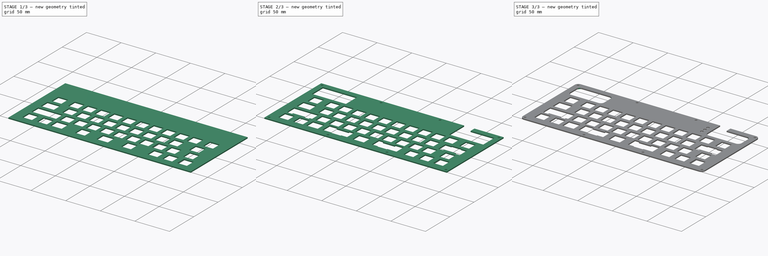
[diagram: build sequence overview — one tinted view per stage of 3, left to right]
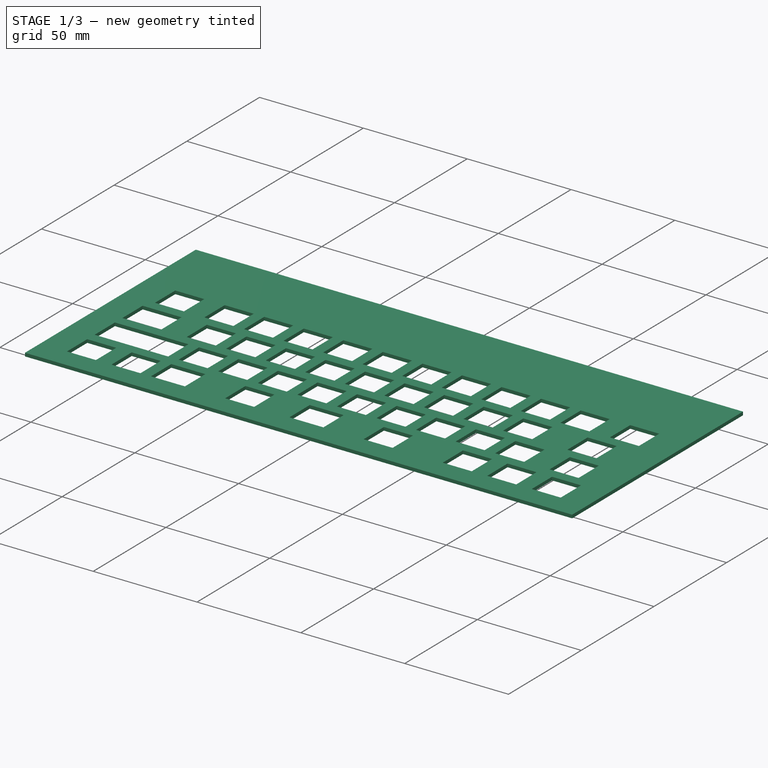
[diagram: stage 1 of 3 — iso view after this stage's code; geometry added in this stage tinted green]
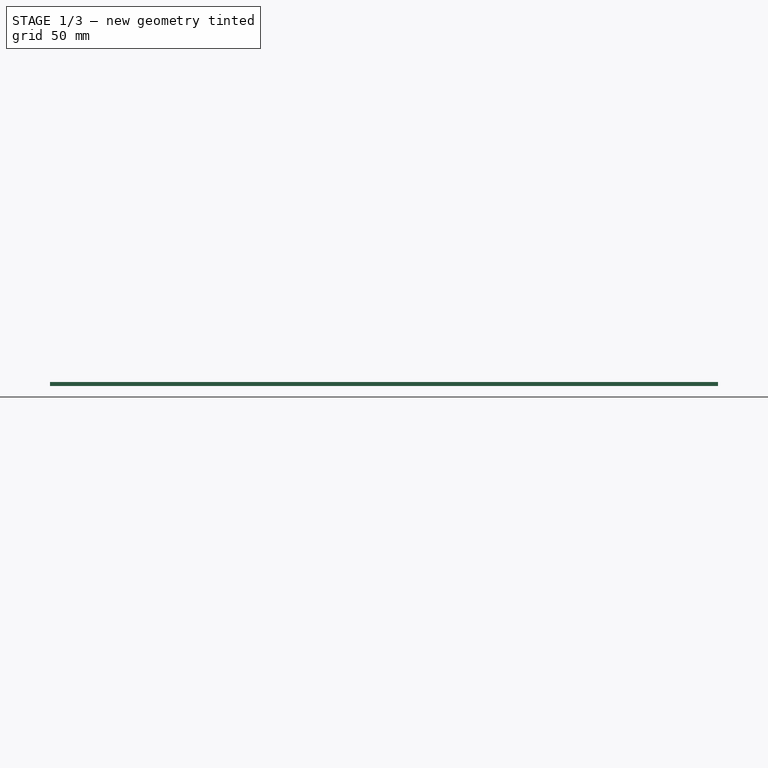
[diagram: stage 1 of 3 — front view after this stage's code; geometry added in this stage tinted green]
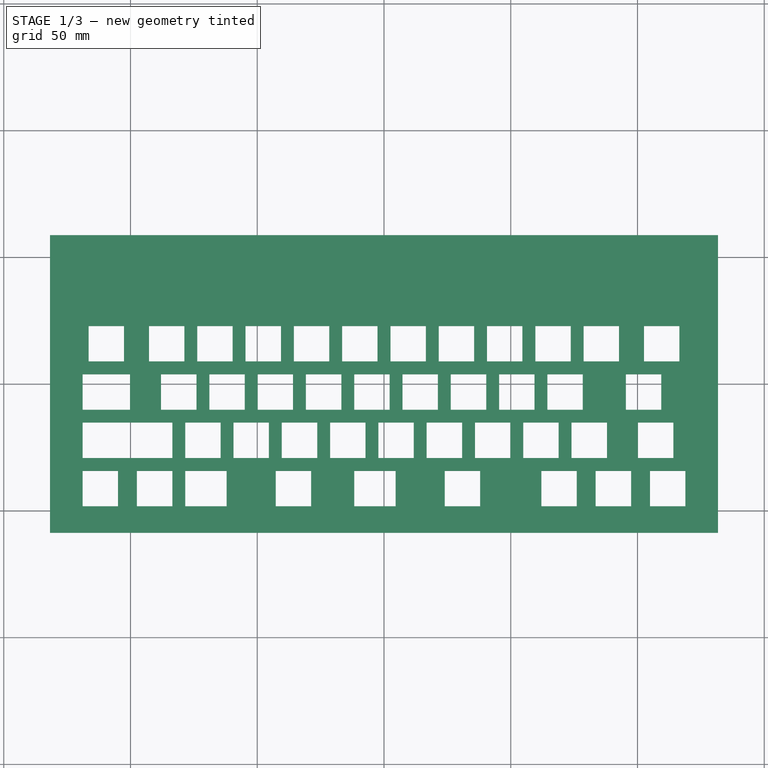
[diagram: stage 1 of 3 — top view after this stage's code; geometry added in this stage tinted green]
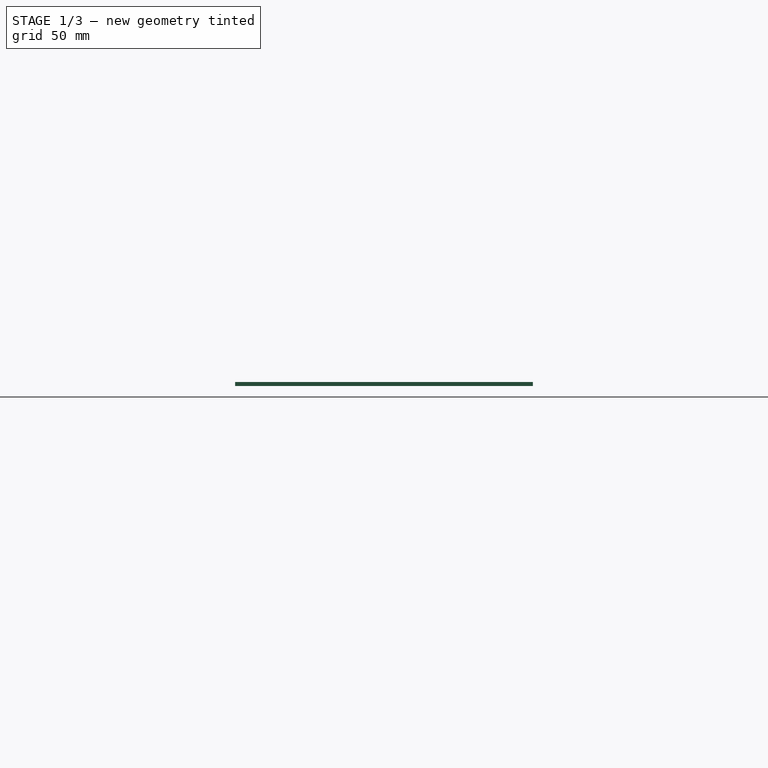
[diagram: stage 1 of 3 — right view after this stage's code; geometry added in this stage tinted green]
FCSTD DOCUMENT  (FreeCAD 0.19R22756 (Git))
Label: S86_SwitchPlate
License: Attribution-NonCommercial 4.0 International
LicenseURL: <a rel="license" href="http://creativecommons.org/licenses/by-nc/4.0/"><img alt="Creative Commons License" style="border-width:0" src="https://i.creativecommons.org/l/by-nc/4.0/88x31.png" /></a><br />... (+174 chars)
objects: Sketcher::SketchObject×6, PartDesign::Pocket×4, PartDesign::Pad×1, Spreadsheet::Sheet×1, PartDesign::Hole×1, PartDesign::Fillet×1, PartDesign::Body×1, PartDesign::CoordinateSystem×1, App::Part×1, TechDraw::DrawSVGTemplate×1, TechDraw::DrawViewPart×1, TechDraw::DrawPage×1
note: 22 computed .brp shape members not serialized (recipe doc carries the construction recipe); baked Part::Feature solids carry a one-line shape summary decoded from their .brp

FEATURE [Sketcher::SketchObject] Sketch
  MapMode = 5
  Support = -> [XY_Plane]
  sketch-geometry (17):
    g0: LineSegment StartX=-131.762 StartY=-58.7375 StartZ=0 EndX=131.762 EndY=-58.7375 EndZ=0
    g1: LineSegment StartX=131.762 StartY=-58.7375 StartZ=0 EndX=131.762 EndY=58.7375 EndZ=0
    g2: LineSegment StartX=131.762 StartY=58.7375 StartZ=0 EndX=-131.762 EndY=58.7375 EndZ=0
    g3: LineSegment StartX=-131.762 StartY=58.7375 StartZ=0 EndX=-131.762 EndY=-58.7375 EndZ=0
    g4: LineSegment [constr] StartX=-131.762 StartY=58.7375 StartZ=0 EndX=131.762 EndY=-58.7375 EndZ=0
    g5: GeomPoint X=0 Y=0 Z=0
    g6: GeomPoint X=-63.8969 Y=54.7687 Z=0
    g7: GeomPoint X=-3.7e-15 Y=54.7687 Z=0
    g8: LineSegment [constr] StartX=-131.762 StartY=5.3e-15 StartZ=0 EndX=131.762 EndY=4.9e-15 EndZ=0
    g9: LineSegment [constr] StartX=-127.794 StartY=54.7687 StartZ=0 EndX=127.794 EndY=54.7687 EndZ=0
    g10: LineSegment [constr] StartX=127.794 StartY=54.7687 StartZ=0 EndX=127.794 EndY=-54.7687 EndZ=0
    g11: LineSegment [constr] StartX=127.794 StartY=-54.7687 StartZ=0 EndX=-127.794 EndY=-54.7687 EndZ=0
    g12: LineSegment [constr] StartX=-127.794 StartY=-54.7687 StartZ=0 EndX=-127.794 EndY=54.7687 EndZ=0
    g13: GeomPoint X=63.8969 Y=54.7687 Z=0
    g14: GeomPoint X=-63.8969 Y=-54.7687 Z=0
    g15: GeomPoint X=63.8969 Y=-54.7687 Z=0
    g16: GeomPoint X=-2.5e-15 Y=-54.7687 Z=0
  constraints (34):
    c: Coincident(g0,g1)
    c: Coincident(g1,g2)
    c: Coincident(g2,g3)
    c: Coincident(g3,g0)
    c: Horizontal(g0)
    c: Horizontal(g2)
    c: Vertical(g1)
    c: Vertical(g3)
    c: Coincident(g4,g2)
    c: Coincident(g4,g0)
    c: Symmetric(g2,g0,g5)
    c: Coincident(g5,g-1)
    c: DistanceX(g2,g2) = 263.525
    c: DistanceY(g1,g1) = 117.475
    c: Symmetric(g1,g0,g8)
    c: Symmetric(g2,g0,g8)
    c: Coincident(g9,g10)
    c: Coincident(g10,g11)
    c: Coincident(g11,g12)
    c: Coincident(g12,g9)
    c: Horizontal(g9)
    c: Horizontal(g11)
    c: Vertical(g10)
    c: Vertical(g12)
    c: DistanceY(g9,g2) = 3.96875
    c: DistanceX(g2,g9) = 3.96875
    c: DistanceX(g10,g0) = 3.96875
    c: DistanceY(g0,g10) = 3.96875
    c: Symmetric(g9,g9,g7)
    c: Symmetric(g9,g7,g6)
    c: Symmetric(g7,g9,g13)
    c: Symmetric(g11,g10,g16)
    c: Symmetric(g16,g11,g14)
    c: Symmetric(g16,g10,g15)
FEATURE [PartDesign::Pad] Pad  label="Base Sheet"
  Direction = (1,1,1)
  Length = 1.5875
  Length2 = 99.9998
  Profile = -> Sketch
  Type = 0
FEATURE [Sketcher::SketchObject] Sketch001
  ExternalGeometry = -> [Pad]
  MapMode = 5
  Placement = pos=(0,0,1.5875) rot=(0,0,1;0rad)
  Support = -> [Pad]
  sketch-geometry (18):
    g0: LineSegment [constr] StartX=-127.794 StartY=54.7687 StartZ=0 EndX=127.794 EndY=54.7687 EndZ=0
    g1: LineSegment [constr] StartX=127.794 StartY=54.7687 StartZ=0 EndX=127.794 EndY=-54.7687 EndZ=0
    g2: LineSegment [constr] StartX=127.794 StartY=-54.7687 StartZ=0 EndX=-127.794 EndY=-54.7687 EndZ=0
    g3: LineSegment [constr] StartX=-127.794 StartY=-54.7687 StartZ=0 EndX=-127.794 EndY=54.7687 EndZ=0
    g4: Circle CenterX=-42.5979 CenterY=54.7687 CenterZ=0 NormalX=0 NormalY=0 NormalZ=1 AngleXU=0 Radius=11.2464
    g5: Circle CenterX=42.5979 CenterY=54.7687 CenterZ=0 NormalX=0 NormalY=0 NormalZ=1 AngleXU=0 Radius=4.79813
    g6: Circle CenterX=42.5979 CenterY=-54.7687 CenterZ=0 NormalX=0 NormalY=0 NormalZ=1 AngleXU=0 Radius=5.8285
    g7: Circle CenterX=-42.5979 CenterY=-54.7687 CenterZ=0 NormalX=0 NormalY=0 NormalZ=1 AngleXU=0 Radius=9.38922
    g8: Circle CenterX=-127.794 CenterY=-54.7687 CenterZ=0 NormalX=0 NormalY=0 NormalZ=1 AngleXU=0 Radius=7.36111
    g9: Circle CenterX=-127.794 CenterY=54.7687 CenterZ=0 NormalX=0 NormalY=0 NormalZ=1 AngleXU=0 Radius=6.28062
    g10: Circle CenterX=127.794 CenterY=54.7687 CenterZ=0 NormalX=0 NormalY=0 NormalZ=1 AngleXU=0 Radius=5.36446
    g11: Circle CenterX=127.794 CenterY=-54.7687 CenterZ=0 NormalX=0 NormalY=0 NormalZ=1 AngleXU=0 Radius=6.88823
    g12: LineSegment [constr] StartX=-127.794 StartY=54.7687 StartZ=0 EndX=-42.5979 EndY=54.7687 EndZ=0
    g13: LineSegment [constr] StartX=-42.5979 StartY=54.7687 StartZ=0 EndX=42.5979 EndY=54.7687 EndZ=0
    g14: LineSegment [constr] StartX=42.5979 StartY=54.7687 StartZ=0 EndX=127.794 EndY=54.7687 EndZ=0
    g15: LineSegment [constr] StartX=-127.794 StartY=-54.7687 StartZ=0 EndX=-42.5979 EndY=-54.7687 EndZ=0
    g16: LineSegment [constr] StartX=-42.5979 StartY=-54.7687 StartZ=0 EndX=42.5979 EndY=-54.7687 EndZ=0
    g17: LineSegment [constr] StartX=42.5979 StartY=-54.7687 StartZ=0 EndX=127.794 EndY=-54.7687 EndZ=0
  constraints (36):
    c: Coincident(g0,g1)
    c: Coincident(g1,g2)
    c: Coincident(g2,g3)
    c: Coincident(g3,g0)
    c: Horizontal(g0)
    c: Horizontal(g2)
    c: Vertical(g1)
    c: Vertical(g3)
    c: Coincident(g12,g9)
    c: Coincident(g12,g4)
    c: Coincident(g13,g4)
    c: Coincident(g13,g5)
    c: Horizontal(g13)
    c: Coincident(g14,g10)
    c: Coincident(g5,g14)
    c: Equal(g12,g13)
    c: Equal(g13,g14)
    c: Coincident(g9,g0)
    c: Coincident(g10,g0)
    c: Coincident(g11,g1)
    c: Coincident(g8,g2)
    c: PointOnObject(g4,g0)
    c: Coincident(g15,g8)
    c: Coincident(g15,g7)
    c: Coincident(g16,g7)
    c: Coincident(g16,g6)
    c: Coincident(g17,g6)
    c: Coincident(g17,g11)
    c: Equal(g15,g16)
    c: Equal(g16,g17)
    c: PointOnObject(g6,g2)
    c: PointOnObject(g7,g2)
    c: DistanceY(g9,g-3) = 3.96875
    c: DistanceX(g-3,g9) = 3.96875
    c: DistanceX(g11,g-4) = 3.96875
    c: DistanceY(g-4,g11) = 3.96875
FEATURE [Spreadsheet::Sheet] Spreadsheet
  cells = A1(cutOutWidth)==0.55in; A2(acrylicWidth)==0.3125in
FEATURE [Sketcher::SketchObject] Sketch002
  ExternalGeometry = -> [Pad]
  MapMode = 5
  Placement = pos=(0,0,1.5875) rot=(0,0,1;0rad)
  Support = -> [Pad]
  expr: Constraints[35] = Spreadsheet.cutOutWidth
  expr: Constraints[562] = Spreadsheet.cutOutWidth
  expr: Constraints[37] = Spreadsheet.cutOutWidth
  expr: Constraints[563] = 0.75in * 2.75 / 2 + 0.375in
  expr: Constraints[380] = Spreadsheet.cutOutWidth
  expr: Constraints[441] = Spreadsheet.cutOutWidth
  expr: Constraints[36] = Spreadsheet.cutOutWidth
  expr: Constraints[34] = Spreadsheet.cutOutWidth
  expr: Constraints[10] = Spreadsheet.acrylicWidth
  expr: Constraints[555] = Spreadsheet.cutOutWidth
  expr: Constraints[9] = Spreadsheet.cutOutWidth
  expr: Constraints[381] = Spreadsheet.cutOutWidth
  expr: Constraints[442] = Spreadsheet.cutOutWidth
  expr: Constraints[556] = Spreadsheet.cutOutWidth
  expr: Constraints[8] = Spreadsheet.cutOutWidth
  expr: Constraints[421] = 0.75in * 1.5 / 2 + 0.375in
  expr: Constraints[382] = Spreadsheet.cutOutWidth
  expr: Constraints[11] = Spreadsheet.acrylicWidth
  expr: Constraints[443] = 0.75in * 1.75 / 2 + 0.375in
  expr: Constraints[383] = Spreadsheet.cutOutWidth
  expr: Constraints[414] = Spreadsheet.cutOutWidth
  expr: Constraints[415] = Spreadsheet.cutOutWidth
  expr: Constraints[559] = 0.75in * 2.25 / 2 + 0.375in
  expr: Constraints[423] = 0.75in * 1.25 / 2 + 0.375in
  expr: Constraints[416] = Spreadsheet.cutOutWidth
  expr: Constraints[564] = 0.75in * 1.25 / 2 + 0.375in * 2.75
  expr: Constraints[417] = Spreadsheet.cutOutWidth
  expr: Constraints[387] = 0.75in * 2.25 / 2 + 0.375in
  expr: Constraints[540] = Spreadsheet.cutOutWidth
  expr: Constraints[558] = 0.75in * 2.25 / 2 + 0.375in * 1.25
  expr: Constraints[384] = Spreadsheet.cutOutWidth
  expr: Constraints[385] = Spreadsheet.cutOutWidth
  expr: Constraints[418] = Spreadsheet.cutOutWidth
  expr: Constraints[561] = Spreadsheet.cutOutWidth
  expr: Constraints[565] = 0.75in * 1 / 2 + 0.375in * 1.25
  expr: Constraints[386] = 0.75in * 1.5 / 2 + 0.375in
  expr: Constraints[388] = 0.75in * 1.75 / 2 + 0.375in
  expr: Constraints[560] = 6.25in * 0.75 / 2 + 0.375in
  expr: Constraints[566] = 0.75in * 1.25 / 2 + 0.375in
  sketch-geometry (190):
    g0: LineSegment StartX=-92.71 StartY=22.86 StartZ=0 EndX=-78.74 EndY=22.86 EndZ=0
    g1: LineSegment StartX=-78.74 StartY=22.86 StartZ=0 EndX=-78.74 EndY=8.89 EndZ=0
    g2: LineSegment StartX=-78.74 StartY=8.89 StartZ=0 EndX=-92.71 EndY=8.89 EndZ=0
    g3: LineSegment StartX=-92.71 StartY=8.89 StartZ=0 EndX=-92.71 EndY=22.86 EndZ=0
    g4: GeomPoint X=-123.825 Y=50.8 Z=0
    g5: LineSegment StartX=-87.9475 StartY=3.81 StartZ=0 EndX=-73.9775 EndY=3.81 EndZ=0
    g6: LineSegment StartX=-73.9775 StartY=3.81 StartZ=0 EndX=-73.9775 EndY=-10.16 EndZ=0
    g7: LineSegment StartX=-73.9775 StartY=-10.16 StartZ=0 EndX=-87.9475 EndY=-10.16 EndZ=0
    g8: LineSegment StartX=-87.9475 StartY=-10.16 StartZ=0 EndX=-87.9475 EndY=3.81 EndZ=0
    g9: LineSegment StartX=-78.4225 StartY=-15.24 StartZ=0 EndX=-64.4525 EndY=-15.24 EndZ=0
    g10: LineSegment StartX=-64.4525 StartY=-15.24 StartZ=0 EndX=-64.4525 EndY=-29.21 EndZ=0
    g11: LineSegment StartX=-64.4525 StartY=-29.21 StartZ=0 EndX=-78.4225 EndY=-29.21 EndZ=0
    g12: LineSegment StartX=-78.4225 StartY=-29.21 StartZ=0 EndX=-78.4225 EndY=-15.24 EndZ=0
    g13: LineSegment StartX=-73.66 StartY=22.86 StartZ=0 EndX=-59.69 EndY=22.86 EndZ=0
    g14: LineSegment StartX=-59.69 StartY=22.86 StartZ=0 EndX=-59.69 EndY=8.89 EndZ=0
    g15: LineSegment StartX=-59.69 StartY=8.89 StartZ=0 EndX=-73.66 EndY=8.89 EndZ=0
    g16: LineSegment StartX=-73.66 StartY=8.89 StartZ=0 EndX=-73.66 EndY=22.86 EndZ=0
    g17: LineSegment StartX=-68.8975 StartY=3.81 StartZ=0 EndX=-54.9275 EndY=3.81 EndZ=0
    g18: LineSegment StartX=-54.9275 StartY=3.81 StartZ=0 EndX=-54.9275 EndY=-10.16 EndZ=0
    g19: LineSegment StartX=-54.9275 StartY=-10.16 StartZ=0 EndX=-68.8975 EndY=-10.16 EndZ=0
    g20: LineSegment StartX=-68.8975 StartY=-10.16 StartZ=0 EndX=-68.8975 EndY=3.81 EndZ=0
    g21: LineSegment StartX=-59.3725 StartY=-15.24 StartZ=0 EndX=-45.4025 EndY=-15.24 EndZ=0
    g22: LineSegment StartX=-45.4025 StartY=-15.24 StartZ=0 EndX=-45.4025 EndY=-29.21 EndZ=0
    g23: LineSegment StartX=-45.4025 StartY=-29.21 StartZ=0 EndX=-59.3725 EndY=-29.21 EndZ=0
    g24: LineSegment StartX=-59.3725 StartY=-29.21 StartZ=0 EndX=-59.3725 EndY=-15.24 EndZ=0
    g25: LineSegment [constr] StartX=-92.71 StartY=22.86 StartZ=0 EndX=-73.66 EndY=22.86 EndZ=0
    g26: LineSegment StartX=-54.61 StartY=22.86 StartZ=0 EndX=-40.64 EndY=22.86 EndZ=0
    g27: LineSegment StartX=-40.64 StartY=22.86 StartZ=0 EndX=-40.64 EndY=8.89 EndZ=0
    g28: LineSegment StartX=-40.64 StartY=8.89 StartZ=0 EndX=-54.61 EndY=8.89 EndZ=0
    g29: LineSegment StartX=-54.61 StartY=8.89 StartZ=0 EndX=-54.61 EndY=22.86 EndZ=0
    g30: LineSegment StartX=-49.8475 StartY=3.81 StartZ=0 EndX=-35.8775 EndY=3.81 EndZ=0
    g31: LineSegment StartX=-35.8775 StartY=3.81 StartZ=0 EndX=-35.8775 EndY=-10.16 EndZ=0
    g32: LineSegment StartX=-35.8775 StartY=-10.16 StartZ=0 EndX=-49.8475 EndY=-10.16 EndZ=0
    g33: LineSegment StartX=-49.8475 StartY=-10.16 StartZ=0 EndX=-49.8475 EndY=3.81 EndZ=0
    g34: LineSegment StartX=-40.3225 StartY=-15.24 StartZ=0 EndX=-26.3525 EndY=-15.24 EndZ=0
    g35: LineSegment StartX=-26.3525 StartY=-15.24 StartZ=0 EndX=-26.3525 EndY=-29.21 EndZ=0
    g36: LineSegment StartX=-26.3525 StartY=-29.21 StartZ=0 EndX=-40.3225 EndY=-29.21 EndZ=0
    g37: LineSegment StartX=-40.3225 StartY=-29.21 StartZ=0 EndX=-40.3225 EndY=-15.24 EndZ=0
    g38: LineSegment [constr] StartX=-73.66 StartY=22.86 StartZ=0 EndX=-54.61 EndY=22.86 EndZ=0
    g39: LineSegment StartX=-35.56 StartY=22.86 StartZ=0 EndX=-21.59 EndY=22.86 EndZ=0
    g40: LineSegment StartX=-21.59 StartY=22.86 StartZ=0 EndX=-21.59 EndY=8.89 EndZ=0
    g41: LineSegment StartX=-21.59 StartY=8.89 StartZ=0 EndX=-35.56 EndY=8.89 EndZ=0
    g42: LineSegment StartX=-35.56 StartY=8.89 StartZ=0 EndX=-35.56 EndY=22.86 EndZ=0
    g43: LineSegment StartX=-30.7975 StartY=3.81 StartZ=0 EndX=-16.8275 EndY=3.81 EndZ=0
    g44: LineSegment StartX=-16.8275 StartY=3.81 StartZ=0 EndX=-16.8275 EndY=-10.16 EndZ=0
    g45: LineSegment StartX=-16.8275 StartY=-10.16 StartZ=0 EndX=-30.7975 EndY=-10.16 EndZ=0
    g46: LineSegment StartX=-30.7975 StartY=-10.16 StartZ=0 EndX=-30.7975 EndY=3.81 EndZ=0
    g47: LineSegment StartX=-21.2725 StartY=-15.24 StartZ=0 EndX=-7.3025 EndY=-15.24 EndZ=0
    g48: LineSegment StartX=-7.3025 StartY=-15.24 StartZ=0 EndX=-7.3025 EndY=-29.21 EndZ=0
    g49: LineSegment StartX=-7.3025 StartY=-29.21 StartZ=0 EndX=-21.2725 EndY=-29.21 EndZ=0
    g50: LineSegment StartX=-21.2725 StartY=-29.21 StartZ=0 EndX=-21.2725 EndY=-15.24 EndZ=0
    g51: LineSegment [constr] StartX=-54.61 StartY=22.86 StartZ=0 EndX=-35.56 EndY=22.86 EndZ=0
    g52: LineSegment StartX=-16.51 StartY=22.86 StartZ=0 EndX=-2.54 EndY=22.86 EndZ=0
    g53: LineSegment StartX=-2.54 StartY=22.86 StartZ=0 EndX=-2.54 EndY=8.89 EndZ=0
    g54: LineSegment StartX=-2.54 StartY=8.89 StartZ=0 EndX=-16.51 EndY=8.89 EndZ=0
    g55: LineSegment StartX=-16.51 StartY=8.89 StartZ=0 EndX=-16.51 EndY=22.86 EndZ=0
    g56: LineSegment StartX=-11.7475 StartY=3.81 StartZ=0 EndX=2.2225 EndY=3.81 EndZ=0
    g57: LineSegment StartX=2.2225 StartY=3.81 StartZ=0 EndX=2.2225 EndY=-10.16 EndZ=0
    g58: LineSegment StartX=2.2225 StartY=-10.16 StartZ=0 EndX=-11.7475 EndY=-10.16 EndZ=0
    g59: LineSegment StartX=-11.7475 StartY=-10.16 StartZ=0 EndX=-11.7475 EndY=3.81 EndZ=0
    g60: LineSegment StartX=-2.2225 StartY=-15.24 StartZ=0 EndX=11.7475 EndY=-15.24 EndZ=0
    g61: LineSegment StartX=11.7475 StartY=-15.24 StartZ=0 EndX=11.7475 EndY=-29.21 EndZ=0
    g62: LineSegment StartX=11.7475 StartY=-29.21 StartZ=0 EndX=-2.2225 EndY=-29.21 EndZ=0
    g63: LineSegment StartX=-2.2225 StartY=-29.21 StartZ=0 EndX=-2.2225 EndY=-15.24 EndZ=0
    g64: LineSegment [constr] StartX=-35.56 StartY=22.86 StartZ=0 EndX=-16.51 EndY=22.86 EndZ=0
    g65: LineSegment StartX=2.54 StartY=22.86 StartZ=0 EndX=16.51 EndY=22.86 EndZ=0
    g66: LineSegment StartX=16.51 StartY=22.86 StartZ=0 EndX=16.51 EndY=8.89 EndZ=0
    g67: LineSegment StartX=16.51 StartY=8.89 StartZ=0 EndX=2.54 EndY=8.89 EndZ=0
    g68: LineSegment StartX=2.54 StartY=8.89 StartZ=0 EndX=2.54 EndY=22.86 EndZ=0
    g69: LineSegment StartX=7.3025 StartY=3.81 StartZ=0 EndX=21.2725 EndY=3.81 EndZ=0
    g70: LineSegment StartX=21.2725 StartY=3.81 StartZ=0 EndX=21.2725 EndY=-10.16 EndZ=0
    g71: LineSegment StartX=21.2725 StartY=-10.16 StartZ=0 EndX=7.3025 EndY=-10.16 EndZ=0
    g72: LineSegment StartX=7.3025 StartY=-10.16 StartZ=0 EndX=7.3025 EndY=3.81 EndZ=0
    g73: LineSegment StartX=16.8275 StartY=-15.24 StartZ=0 EndX=30.7975 EndY=-15.24 EndZ=0
    g74: LineSegment StartX=30.7975 StartY=-15.24 StartZ=0 EndX=30.7975 EndY=-29.21 EndZ=0
    g75: LineSegment StartX=30.7975 StartY=-29.21 StartZ=0 EndX=16.8275 EndY=-29.21 EndZ=0
    g76: LineSegment StartX=16.8275 StartY=-29.21 StartZ=0 EndX=16.8275 EndY=-15.24 EndZ=0
    g77: LineSegment [constr] StartX=-16.51 StartY=22.86 StartZ=0 EndX=2.54 EndY=22.86 EndZ=0
    g78: LineSegment StartX=21.59 StartY=22.86 StartZ=0 EndX=35.56 EndY=22.86 EndZ=0
    g79: LineSegment StartX=35.56 StartY=22.86 StartZ=0 EndX=35.56 EndY=8.89 EndZ=0
    g80: LineSegment StartX=35.56 StartY=8.89 StartZ=0 EndX=21.59 EndY=8.89 EndZ=0
    g81: LineSegment StartX=21.59 StartY=8.89 StartZ=0 EndX=21.59 EndY=22.86 EndZ=0
    g82: LineSegment StartX=26.3525 StartY=3.81 StartZ=0 EndX=40.3225 EndY=3.81 EndZ=0
    g83: LineSegment StartX=40.3225 StartY=3.81 StartZ=0 EndX=40.3225 EndY=-10.16 EndZ=0
    g84: LineSegment StartX=40.3225 StartY=-10.16 StartZ=0 EndX=26.3525 EndY=-10.16 EndZ=0
    g85: LineSegment StartX=26.3525 StartY=-10.16 StartZ=0 EndX=26.3525 EndY=3.81 EndZ=0
    g86: LineSegment StartX=35.8775 StartY=-15.24 StartZ=0 EndX=49.8475 EndY=-15.24 EndZ=0
    g87: LineSegment StartX=49.8475 StartY=-15.24 StartZ=0 EndX=49.8475 EndY=-29.21 EndZ=0
    g88: LineSegment StartX=49.8475 StartY=-29.21 StartZ=0 EndX=35.8775 EndY=-29.21 EndZ=0
    g89: LineSegment StartX=35.8775 StartY=-29.21 StartZ=0 EndX=35.8775 EndY=-15.24 EndZ=0
    g90: LineSegment [constr] StartX=2.54 StartY=22.86 StartZ=0 EndX=21.59 EndY=22.86 EndZ=0
    g91: LineSegment StartX=40.64 StartY=22.86 StartZ=0 EndX=54.61 EndY=22.86 EndZ=0
    g92: LineSegment StartX=54.61 StartY=22.86 StartZ=0 EndX=54.61 EndY=8.89 EndZ=0
    g93: LineSegment StartX=54.61 StartY=8.89 StartZ=0 EndX=40.64 EndY=8.89 EndZ=0
    g94: LineSegment StartX=40.64 StartY=8.89 StartZ=0 EndX=40.64 EndY=22.86 EndZ=0
    g95: LineSegment StartX=45.4025 StartY=3.81 StartZ=0 EndX=59.3725 EndY=3.81 EndZ=0
    g96: LineSegment StartX=59.3725 StartY=3.81 StartZ=0 EndX=59.3725 EndY=-10.16 EndZ=0
    g97: LineSegment StartX=59.3725 StartY=-10.16 StartZ=0 EndX=45.4025 EndY=-10.16 EndZ=0
    g98: LineSegment StartX=45.4025 StartY=-10.16 StartZ=0 EndX=45.4025 EndY=3.81 EndZ=0
    g99: LineSegment StartX=54.9275 StartY=-15.24 StartZ=0 EndX=68.8975 EndY=-15.24 EndZ=0
    g100: LineSegment StartX=68.8975 StartY=-15.24 StartZ=0 EndX=68.8975 EndY=-29.21 EndZ=0
    g101: LineSegment StartX=68.8975 StartY=-29.21 StartZ=0 EndX=54.9275 EndY=-29.21 EndZ=0
    g102: LineSegment StartX=54.9275 StartY=-29.21 StartZ=0 EndX=54.9275 EndY=-15.24 EndZ=0
    g103: LineSegment [constr] StartX=21.59 StartY=22.86 StartZ=0 EndX=40.64 EndY=22.86 EndZ=0
    g104: LineSegment StartX=59.69 StartY=22.86 StartZ=0 EndX=73.66 EndY=22.86 EndZ=0
    g105: LineSegment StartX=73.66 StartY=22.86 StartZ=0 EndX=73.66 EndY=8.89 EndZ=0
    g106: LineSegment StartX=73.66 StartY=8.89 StartZ=0 EndX=59.69 EndY=8.89 EndZ=0
    g107: LineSegment StartX=59.69 StartY=8.89 StartZ=0 EndX=59.69 EndY=22.86 EndZ=0
    g108: LineSegment StartX=64.4525 StartY=3.81 StartZ=0 EndX=78.4225 EndY=3.81 EndZ=0
    g109: LineSegment StartX=78.4225 StartY=3.81 StartZ=0 EndX=78.4225 EndY=-10.16 EndZ=0
    g110: LineSegment StartX=78.4225 StartY=-10.16 StartZ=0 EndX=64.4525 EndY=-10.16 EndZ=0
    g111: LineSegment StartX=64.4525 StartY=-10.16 StartZ=0 EndX=64.4525 EndY=3.81 EndZ=0
    g112: LineSegment StartX=73.9775 StartY=-15.24 StartZ=0 EndX=87.9475 EndY=-15.24 EndZ=0
    g113: LineSegment StartX=87.9475 StartY=-15.24 StartZ=0 EndX=87.9475 EndY=-29.21 EndZ=0
    g114: LineSegment StartX=87.9475 StartY=-29.21 StartZ=0 EndX=73.9775 EndY=-29.21 EndZ=0
    g115: LineSegment StartX=73.9775 StartY=-29.21 StartZ=0 EndX=73.9775 EndY=-15.24 EndZ=0
    g116: LineSegment [constr] StartX=40.64 StartY=22.86 StartZ=0 EndX=59.69 EndY=22.86 EndZ=0
    g117: LineSegment StartX=78.74 StartY=22.86 StartZ=0 EndX=92.71 EndY=22.86 EndZ=0
    g118: LineSegment StartX=92.71 StartY=22.86 StartZ=0 EndX=92.71 EndY=8.89 EndZ=0
    g119: LineSegment StartX=92.71 StartY=8.89 StartZ=0 EndX=78.74 EndY=8.89 EndZ=0
    g120: LineSegment StartX=78.74 StartY=8.89 StartZ=0 EndX=78.74 EndY=22.86 EndZ=0
    g121: LineSegment [constr] StartX=59.69 StartY=22.86 StartZ=0 EndX=78.74 EndY=22.86 EndZ=0
    g122: LineSegment StartX=102.553 StartY=22.86 StartZ=0 EndX=116.523 EndY=22.86 EndZ=0
    g123: LineSegment StartX=116.523 StartY=22.86 StartZ=0 EndX=116.523 EndY=8.89 EndZ=0
    g124: LineSegment StartX=116.523 StartY=8.89 StartZ=0 EndX=102.553 EndY=8.89 EndZ=0
    g125: LineSegment StartX=102.553 StartY=8.89 StartZ=0 EndX=102.553 EndY=22.86 EndZ=0
    g126: LineSegment StartX=95.4088 StartY=-10.16 StartZ=0 EndX=109.379 EndY=-10.16 EndZ=0
    g127: LineSegment StartX=109.379 StartY=-10.16 StartZ=0 EndX=109.379 EndY=3.81 EndZ=0
    g128: LineSegment StartX=109.379 StartY=3.81 StartZ=0 EndX=95.4088 EndY=3.81 EndZ=0
    g129: LineSegment StartX=95.4088 StartY=3.81 StartZ=0 EndX=95.4088 EndY=-10.16 EndZ=0
    g130: LineSegment StartX=100.171 StartY=-15.24 StartZ=0 EndX=114.141 EndY=-15.24 EndZ=0
    g131: LineSegment StartX=114.141 StartY=-15.24 StartZ=0 EndX=114.141 EndY=-29.21 EndZ=0
    g132: LineSegment StartX=114.141 StartY=-29.21 StartZ=0 EndX=100.171 EndY=-29.21 EndZ=0
    g133: LineSegment StartX=100.171 StartY=-29.21 StartZ=0 EndX=100.171 EndY=-15.24 EndZ=0
    g134: LineSegment StartX=-116.522 StartY=22.86 StartZ=0 EndX=-102.552 EndY=22.86 EndZ=0
    g135: LineSegment StartX=-102.552 StartY=22.86 StartZ=0 EndX=-102.552 EndY=8.89 EndZ=0
    g136: LineSegment StartX=-102.552 StartY=8.89 StartZ=0 EndX=-116.522 EndY=8.89 EndZ=0
    g137: LineSegment StartX=-116.522 StartY=8.89 StartZ=0 EndX=-116.522 EndY=22.86 EndZ=0
    g138: LineSegment StartX=-118.904 StartY=-15.24 StartZ=0 EndX=-83.5025 EndY=-15.24 EndZ=0
    g139: LineSegment StartX=-83.5025 StartY=-15.24 StartZ=0 EndX=-83.5025 EndY=-29.21 EndZ=0
    g140: LineSegment StartX=-83.5025 StartY=-29.21 StartZ=0 EndX=-118.904 EndY=-29.21 EndZ=0
    g141: LineSegment StartX=-118.904 StartY=-29.21 StartZ=0 EndX=-118.904 EndY=-15.24 EndZ=0
    g142: LineSegment [constr] StartX=-104.934 StartY=-15.24 StartZ=0 EndX=-104.934 EndY=-29.21 EndZ=0
    g143: LineSegment [constr] StartX=-97.4725 StartY=-15.24 StartZ=0 EndX=-97.4725 EndY=-29.21 EndZ=0
    g144: LineSegment StartX=-118.904 StartY=3.81 StartZ=0 EndX=-100.171 EndY=3.81 EndZ=0
    g145: LineSegment StartX=-100.171 StartY=3.81 StartZ=0 EndX=-100.171 EndY=-10.16 EndZ=0
    g146: LineSegment StartX=-100.171 StartY=-10.16 StartZ=0 EndX=-118.904 EndY=-10.16 EndZ=0
    g147: LineSegment StartX=-118.904 StartY=-10.16 StartZ=0 EndX=-118.904 EndY=3.81 EndZ=0
    g148: LineSegment [constr] StartX=-104.934 StartY=3.81 StartZ=0 EndX=-104.934 EndY=-10.16 EndZ=0
    g149: LineSegment [constr] StartX=-114.141 StartY=3.81 StartZ=0 EndX=-114.141 EndY=-10.16 EndZ=0
    g150: LineSegment StartX=-118.904 StartY=-34.29 StartZ=0 EndX=-104.934 EndY=-34.29 EndZ=0
    g151: LineSegment StartX=-104.934 StartY=-34.29 StartZ=0 EndX=-104.934 EndY=-48.26 EndZ=0
    g152: LineSegment StartX=-104.934 StartY=-48.26 StartZ=0 EndX=-118.904 EndY=-48.26 EndZ=0
    g153: LineSegment StartX=-118.904 StartY=-48.26 StartZ=0 EndX=-118.904 EndY=-34.29 EndZ=0
    g154: LineSegment StartX=-97.4725 StartY=-34.29 StartZ=0 EndX=-83.5025 EndY=-34.29 EndZ=0
    g155: LineSegment StartX=-83.5025 StartY=-34.29 StartZ=0 EndX=-83.5025 EndY=-48.26 EndZ=0
    g156: LineSegment StartX=-83.5025 StartY=-48.26 StartZ=0 EndX=-97.4725 EndY=-48.26 EndZ=0
    g157: LineSegment StartX=-97.4725 StartY=-48.26 StartZ=0 EndX=-97.4725 EndY=-34.29 EndZ=0
    g158: LineSegment StartX=-78.4225 StartY=-34.29 StartZ=0 EndX=-62.0712 EndY=-34.29 EndZ=0
    g159: LineSegment StartX=-62.0712 StartY=-34.29 StartZ=0 EndX=-62.0712 EndY=-48.26 EndZ=0
    g160: LineSegment StartX=-62.0712 StartY=-48.26 StartZ=0 EndX=-78.4225 EndY=-48.26 EndZ=0
    g161: LineSegment StartX=-78.4225 StartY=-48.26 StartZ=0 EndX=-78.4225 EndY=-34.29 EndZ=0
    g162: LineSegment StartX=-42.7037 StartY=-34.29 StartZ=0 EndX=-28.7337 EndY=-34.29 EndZ=0
    g163: LineSegment StartX=-28.7337 StartY=-34.29 StartZ=0 EndX=-28.7337 EndY=-48.26 EndZ=0
    g164: LineSegment StartX=-28.7337 StartY=-48.26 StartZ=0 EndX=-42.7037 EndY=-48.26 EndZ=0
    g165: LineSegment StartX=-42.7037 StartY=-48.26 StartZ=0 EndX=-42.7037 EndY=-34.29 EndZ=0
    g166: LineSegment StartX=-11.7475 StartY=-34.29 StartZ=0 EndX=4.60375 EndY=-34.29 EndZ=0
    g167: LineSegment StartX=4.60375 StartY=-34.29 StartZ=0 EndX=4.60375 EndY=-48.26 EndZ=0
    g168: LineSegment StartX=4.60375 StartY=-48.26 StartZ=0 EndX=-11.7475 EndY=-48.26 EndZ=0
    g169: LineSegment StartX=-11.7475 StartY=-48.26 StartZ=0 EndX=-11.7475 EndY=-34.29 EndZ=0
    g170: LineSegment StartX=23.9712 StartY=-34.29 StartZ=0 EndX=37.9412 EndY=-34.29 EndZ=0
    g171: LineSegment StartX=37.9412 StartY=-34.29 StartZ=0 EndX=37.9412 EndY=-48.26 EndZ=0
    g172: LineSegment StartX=37.9412 StartY=-48.26 StartZ=0 EndX=23.9712 EndY=-48.26 EndZ=0
    g173: LineSegment StartX=23.9712 StartY=-48.26 StartZ=0 EndX=23.9712 EndY=-34.29 EndZ=0
    g174: LineSegment StartX=62.0712 StartY=-34.29 StartZ=0 EndX=76.0412 EndY=-34.29 EndZ=0
    g175: LineSegment StartX=76.0412 StartY=-34.29 StartZ=0 EndX=76.0412 EndY=-48.26 EndZ=0
    g176: LineSegment StartX=76.0412 StartY=-48.26 StartZ=0 EndX=62.0712 EndY=-48.26 EndZ=0
    g177: LineSegment StartX=62.0712 StartY=-48.26 StartZ=0 EndX=62.0712 EndY=-34.29 EndZ=0
    g178: LineSegment StartX=83.5025 StartY=-34.29 StartZ=0 EndX=97.4725 EndY=-34.29 EndZ=0
    g179: LineSegment StartX=97.4725 StartY=-34.29 StartZ=0 EndX=97.4725 EndY=-48.26 EndZ=0
    g180: LineSegment StartX=97.4725 StartY=-48.26 StartZ=0 EndX=83.5025 EndY=-48.26 EndZ=0
    g181: LineSegment StartX=83.5025 StartY=-48.26 StartZ=0 EndX=83.5025 EndY=-34.29 EndZ=0
    g182: LineSegment StartX=104.934 StartY=-34.29 StartZ=0 EndX=118.904 EndY=-34.29 EndZ=0
    g183: LineSegment StartX=118.904 StartY=-34.29 StartZ=0 EndX=118.904 EndY=-48.26 EndZ=0
    g184: LineSegment StartX=118.904 StartY=-48.26 StartZ=0 EndX=104.934 EndY=-48.26 EndZ=0
    g185: LineSegment StartX=104.934 StartY=-48.26 StartZ=0 EndX=104.934 EndY=-34.29 EndZ=0
    g186: LineSegment [constr] StartX=-9.36625 StartY=-34.29 StartZ=0 EndX=-9.36625 EndY=-48.26 EndZ=0
    g187: LineSegment [constr] StartX=2.2225 StartY=-34.29 StartZ=0 EndX=2.2225 EndY=-48.26 EndZ=0
    g188: LineSegment [constr] StartX=-76.0412 StartY=-34.29 StartZ=0 EndX=-76.0412 EndY=-48.26 EndZ=0
    g189: LineSegment [constr] StartX=-64.4525 StartY=-34.29 StartZ=0 EndX=-64.4525 EndY=-48.26 EndZ=0
  constraints (568):
    c: Coincident(g0,g1)
    c: Coincident(g1,g2)
    c: Coincident(g2,g3)
    c: Coincident(g3,g0)
    c: Horizontal(g0)
    c: Horizontal(g2)
    c: Vertical(g1)
    c: Vertical(g3)
    c: DistanceX(g0,g0) = 13.97
    c: DistanceY(g1,g1) = 13.97
    c: DistanceX(g-3,g4) = 7.9375
    c: DistanceY(g4,g-3) = 7.9375
    c: DistanceX(g4,g0) = 31.115
    c: DistanceY(g0,g4) = 27.94
    c: Coincident(g5,g6)
    c: Coincident(g6,g7)
    c: Coincident(g7,g8)
    c: Coincident(g8,g5)
    c: Horizontal(g5)
    c: Horizontal(g7)
    c: Vertical(g6)
    c: Vertical(g8)
    c: Coincident(g9,g10)
    c: Coincident(g10,g11)
    c: Coincident(g11,g12)
    c: Coincident(g12,g9)
    c: Horizontal(g9)
    c: Horizontal(g11)
    c: Vertical(g10)
    c: Vertical(g12)
    c: DistanceX(g2,g5) = 4.7625
    c: DistanceX(g2,g9) = 14.2875
    c: DistanceY(g5,g0) = 19.05
    c: DistanceY(g9,g5) = 19.05
    c: DistanceY(g6,g6) = 13.97
    c: DistanceY(g10,g10) = 13.97
    c: DistanceX(g11,g11) = 13.97
    c: DistanceX(g7,g7) = 13.97
    c: Coincident(g13,g14)
    c: Coincident(g14,g15)
    c: Coincident(g15,g16)
    c: Coincident(g16,g13)
    c: Horizontal(g13)
    c: Horizontal(g15)
    c: Vertical(g14)
    c: Vertical(g16)
    c: DistanceX(g13,g13) = 13.97
    c: DistanceY(g14,g14) = 13.97
    c: Coincident(g17,g18)
    c: Coincident(g18,g19)
    c: Coincident(g19,g20)
    c: Coincident(g20,g17)
    c: Horizontal(g17)
    c: Horizontal(g19)
    c: Vertical(g18)
    c: Vertical(g20)
    c: Coincident(g21,g22)
    c: Coincident(g22,g23)
    c: Coincident(g23,g24)
    c: Coincident(g24,g21)
    c: Horizontal(g21)
    c: Horizontal(g23)
    c: Vertical(g22)
    c: Vertical(g24)
    c: DistanceX(g15,g17) = 4.7625
    c: DistanceX(g15,g21) = 14.2875
    c: DistanceY(g17,g13) = 19.05
    c: DistanceY(g21,g17) = 19.05
    c: DistanceY(g18,g18) = 13.97
    c: DistanceY(g22,g22) = 13.97
    c: DistanceX(g23,g23) = 13.97
    c: DistanceX(g19,g19) = 13.97
    c: Coincident(g0,g25)
    c: Coincident(g13,g25)
    c: Distance(g25) = 19.05
    c: Angle(g25) = 0
    c: Coincident(g26,g27)
    c: Coincident(g27,g28)
    c: Coincident(g28,g29)
    c: Coincident(g29,g26)
    c: Horizontal(g26)
    c: Horizontal(g28)
    c: Vertical(g27)
    c: Vertical(g29)
    c: DistanceX(g26,g26) = 13.97
    c: DistanceY(g27,g27) = 13.97
    c: Coincident(g30,g31)
    c: Coincident(g31,g32)
    c: Coincident(g32,g33)
    c: Coincident(g33,g30)
    c: Horizontal(g30)
    c: Horizontal(g32)
    c: Vertical(g31)
    c: Vertical(g33)
    c: Coincident(g34,g35)
    c: Coincident(g35,g36)
    c: Coincident(g36,g37)
    c: Coincident(g37,g34)
    c: Horizontal(g34)
    c: Horizontal(g36)
    c: Vertical(g35)
    c: Vertical(g37)
    c: DistanceX(g28,g30) = 4.7625
    c: DistanceX(g28,g34) = 14.2875
    c: DistanceY(g30,g26) = 19.05
    c: DistanceY(g34,g30) = 19.05
    c: DistanceY(g31,g31) = 13.97
    c: DistanceY(g35,g35) = 13.97
    c: DistanceX(g36,g36) = 13.97
    c: DistanceX(g32,g32) = 13.97
    c: Coincident(g13,g38)
    c: Coincident(g26,g38)
    c: Equal(g25,g38)
    c: Parallel(g38,g25)
    c: Coincident(g39,g40)
    c: Coincident(g40,g41)
    c: Coincident(g41,g42)
    c: Coincident(g42,g39)
    c: Horizontal(g39)
    c: Horizontal(g41)
    c: Vertical(g40)
    c: Vertical(g42)
    c: DistanceX(g39,g39) = 13.97
    c: DistanceY(g40,g40) = 13.97
    c: Coincident(g43,g44)
    c: Coincident(g44,g45)
    c: Coincident(g45,g46)
    c: Coincident(g46,g43)
    c: Horizontal(g43)
    c: Horizontal(g45)
    c: Vertical(g44)
    c: Vertical(g46)
    c: Coincident(g47,g48)
    c: Coincident(g48,g49)
    c: Coincident(g49,g50)
    c: Coincident(g50,g47)
    c: Horizontal(g47)
    c: Horizontal(g49)
    c: Vertical(g48)
    c: Vertical(g50)
    c: DistanceX(g41,g43) = 4.7625
    c: DistanceX(g41,g47) = 14.2875
    c: DistanceY(g43,g39) = 19.05
    c: DistanceY(g47,g43) = 19.05
    c: DistanceY(g44,g44) = 13.97
    c: DistanceY(g48,g48) = 13.97
    c: DistanceX(g49,g49) = 13.97
    c: DistanceX(g45,g45) = 13.97
    c: Coincident(g26,g51)
    c: Coincident(g39,g51)
    c: Equal(g25,g51)
    c: Parallel(g51,g25)
    c: Coincident(g52,g53)
    c: Coincident(g53,g54)
    c: Coincident(g54,g55)
    c: Coincident(g55,g52)
    c: Horizontal(g52)
    c: Horizontal(g54)
    c: Vertical(g53)
    c: Vertical(g55)
    c: DistanceX(g52,g52) = 13.97
    c: DistanceY(g53,g53) = 13.97
    c: Coincident(g56,g57)
    c: Coincident(g57,g58)
    c: Coincident(g58,g59)
    c: Coincident(g59,g56)
    c: Horizontal(g56)
    c: Horizontal(g58)
    c: Vertical(g57)
    c: Vertical(g59)
    c: Coincident(g60,g61)
    c: Coincident(g61,g62)
    c: Coincident(g62,g63)
    c: Coincident(g63,g60)
    c: Horizontal(g60)
    c: Horizontal(g62)
    c: Vertical(g61)
    c: Vertical(g63)
    c: DistanceX(g54,g56) = 4.7625
    c: DistanceX(g54,g60) = 14.2875
    c: DistanceY(g56,g52) = 19.05
    c: DistanceY(g60,g56) = 19.05
    c: DistanceY(g57,g57) = 13.97
    c: DistanceY(g61,g61) = 13.97
    c: DistanceX(g62,g62) = 13.97
    c: DistanceX(g58,g58) = 13.97
    c: Coincident(g39,g64)
    c: Coincident(g52,g64)
    c: Equal(g25,g64)
    c: Parallel(g64,g25)
    c: Coincident(g65,g66)
    c: Coincident(g66,g67)
    c: Coincident(g67,g68)
    c: Coincident(g68,g65)
    c: Horizontal(g65)
    c: Horizontal(g67)
    c: Vertical(g66)
    c: Vertical(g68)
    c: DistanceX(g65,g65) = 13.97
    c: DistanceY(g66,g66) = 13.97
    c: Coincident(g69,g70)
    c: Coincident(g70,g71)
    c: Coincident(g71,g72)
    c: Coincident(g72,g69)
    c: Horizontal(g69)
    c: Horizontal(g71)
    c: Vertical(g70)
    c: Vertical(g72)
    c: Coincident(g73,g74)
    c: Coincident(g74,g75)
    c: Coincident(g75,g76)
    c: Coincident(g76,g73)
    c: Horizontal(g73)
    c: Horizontal(g75)
    c: Vertical(g74)
    c: Vertical(g76)
    c: DistanceX(g67,g69) = 4.7625
    c: DistanceX(g67,g73) = 14.2875
    c: DistanceY(g69,g65) = 19.05
    c: DistanceY(g73,g69) = 19.05
    c: DistanceY(g70,g70) = 13.97
    c: DistanceY(g74,g74) = 13.97
    c: DistanceX(g75,g75) = 13.97
    c: DistanceX(g71,g71) = 13.97
    c: Coincident(g52,g77)
    c: Coincident(g65,g77)
    c: Equal(g25,g77)
    c: Parallel(g77,g25)
    c: Coincident(g78,g79)
    c: Coincident(g79,g80)
    c: Coincident(g80,g81)
    c: Coincident(g81,g78)
    c: Horizontal(g78)
    c: Horizontal(g80)
    c: Vertical(g79)
    c: Vertical(g81)
    c: DistanceX(g78,g78) = 13.97
    c: DistanceY(g79,g79) = 13.97
    c: Coincident(g82,g83)
    c: Coincident(g83,g84)
    c: Coincident(g84,g85)
    c: Coincident(g85,g82)
    c: Horizontal(g82)
    c: Horizontal(g84)
    c: Vertical(g83)
    c: Vertical(g85)
    c: Coincident(g86,g87)
    c: Coincident(g87,g88)
    c: Coincident(g88,g89)
    c: Coincident(g89,g86)
    c: Horizontal(g86)
    c: Horizontal(g88)
    c: Vertical(g87)
    c: Vertical(g89)
    c: DistanceX(g80,g82) = 4.7625
    c: DistanceX(g80,g86) = 14.2875
    c: DistanceY(g82,g78) = 19.05
    c: DistanceY(g86,g82) = 19.05
    c: DistanceY(g83,g83) = 13.97
    c: DistanceY(g87,g87) = 13.97
    c: DistanceX(g88,g88) = 13.97
    c: DistanceX(g84,g84) = 13.97
    c: Coincident(g65,g90)
    c: Coincident(g78,g90)
    c: Equal(g25,g90)
    c: Parallel(g90,g25)
    c: Coincident(g91,g92)
    c: Coincident(g92,g93)
    c: Coincident(g93,g94)
    c: Coincident(g94,g91)
    c: Horizontal(g91)
    c: Horizontal(g93)
    c: Vertical(g92)
    c: Vertical(g94)
    c: DistanceX(g91,g91) = 13.97
    c: DistanceY(g92,g92) = 13.97
    c: Coincident(g95,g96)
    c: Coincident(g96,g97)
    c: Coincident(g97,g98)
    c: Coincident(g98,g95)
    c: Horizontal(g95)
    c: Horizontal(g97)
    c: Vertical(g96)
    c: Vertical(g98)
    c: Coincident(g99,g100)
    c: Coincident(g100,g101)
    c: Coincident(g101,g102)
    c: Coincident(g102,g99)
    c: Horizontal(g99)
    c: Horizontal(g101)
    c: Vertical(g100)
    c: Vertical(g102)
    c: DistanceX(g93,g95) = 4.7625
    c: DistanceX(g93,g99) = 14.2875
    c: DistanceY(g95,g91) = 19.05
    c: DistanceY(g99,g95) = 19.05
    c: DistanceY(g96,g96) = 13.97
    c: DistanceY(g100,g100) = 13.97
    c: DistanceX(g101,g101) = 13.97
    c: DistanceX(g97,g97) = 13.97
    c: Coincident(g78,g103)
    c: Coincident(g91,g103)
    c: Equal(g25,g103)
    c: Parallel(g103,g25)
    c: Coincident(g104,g105)
    c: Coincident(g105,g106)
    c: Coincident(g106,g107)
    c: Coincident(g107,g104)
    c: Horizontal(g104)
    c: Horizontal(g106)
    c: Vertical(g105)
    c: Vertical(g107)
    c: DistanceX(g104,g104) = 13.97
    c: DistanceY(g105,g105) = 13.97
    c: Coincident(g108,g109)
    c: Coincident(g109,g110)
    c: Coincident(g110,g111)
    c: Coincident(g111,g108)
    c: Horizontal(g108)
    c: Horizontal(g110)
    c: Vertical(g109)
    c: Vertical(g111)
    c: Coincident(g112,g113)
    c: Coincident(g113,g114)
    c: Coincident(g114,g115)
    c: Coincident(g115,g112)
    c: Horizontal(g112)
    c: Horizontal(g114)
    c: Vertical(g113)
    c: Vertical(g115)
    c: DistanceX(g106,g108) = 4.7625
    c: DistanceX(g106,g112) = 14.2875
    c: DistanceY(g108,g104) = 19.05
    c: DistanceY(g112,g108) = 19.05
    c: DistanceY(g109,g109) = 13.97
    c: DistanceY(g113,g113) = 13.97
    c: DistanceX(g114,g114) = 13.97
    c: DistanceX(g110,g110) = 13.97
    c: Coincident(g91,g116)
    c: Coincident(g104,g116)
    c: Equal(g25,g116)
    c: Parallel(g116,g25)
    c: Coincident(g117,g118)
    c: Coincident(g118,g119)
    c: Coincident(g119,g120)
    c: Coincident(g120,g117)
    c: Horizontal(g117)
    c: Horizontal(g119)
    c: Vertical(g118)
    c: Vertical(g120)
    c: DistanceX(g117,g117) = 13.97
    c: DistanceY(g118,g118) = 13.97
    c: Coincident(g104,g121)
    c: Coincident(g117,g121)
    c: Distance(g121) = 19.05
    c: Angle(g121) = 0
    c: Coincident(g122,g123)
    c: Coincident(g123,g124)
    c: Coincident(g124,g125)
    c: Coincident(g125,g122)
    c: Horizontal(g122)
    c: Horizontal(g124)
    c: Vertical(g123)
    c: Vertical(g125)
    c: Coincident(g126,g127)
    c: Coincident(g127,g128)
    c: Coincident(g128,g129)
    c: Coincident(g129,g126)
    c: Horizontal(g126)
    c: Horizontal(g128)
    c: Vertical(g127)
    c: Vertical(g129)
    c: Coincident(g130,g131)
    c: Coincident(g131,g132)
    c: Coincident(g132,g133)
    c: Coincident(g133,g130)
    c: Horizontal(g130)
    c: Horizontal(g132)
    c: Vertical(g131)
    c: Vertical(g133)
    c: DistanceX(g122,g122) = 13.97
    c: DistanceX(g128,g128) = 13.97
    c: DistanceX(g130,g130) = 13.97
    c: DistanceY(g125,g125) = 13.97
    c: DistanceY(g129,g129) = 13.97
    c: DistanceY(g133,g133) = 13.97
    c: DistanceX(g117,g122) = 23.8125
    c: DistanceX(g108,g127) = 30.9562
    c: DistanceX(g112,g130) = 26.1937
    c: PointOnObject(g130,g112)
    c: PointOnObject(g128,g108)
    c: PointOnObject(g122,g117)
    c: Coincident(g134,g135)
    c: Coincident(g135,g136)
    c: Coincident(g136,g137)
    c: Coincident(g137,g134)
    c: Horizontal(g134)
    c: Horizontal(g136)
    c: Vertical(g135)
    c: Vertical(g137)
    c: Coincident(g138,g139)
    c: Coincident(g139,g140)
    c: Coincident(g140,g141)
    c: Coincident(g141,g138)
    c: Horizontal(g138)
    c: Horizontal(g140)
    c: Vertical(g139)
    c: Vertical(g141)
    c: PointOnObject(g142,g138)
    c: PointOnObject(g142,g140)
    c: PointOnObject(g143,g138)
    c: PointOnObject(g143,g140)
    c: Perpendicular(g140,g142)
    c: Perpendicular(g140,g143)
    c: DistanceX(g134,g134) = 13.97
    c: DistanceY(g135,g135) = 13.97
    c: DistanceY(g139,g139) = 13.97
    c: DistanceX(g143,g138) = 13.97
    c: DistanceX(g138,g142) = 13.97
    c: PointOnObject(g138,g9)
    c: PointOnObject(g134,g0)
    c: DistanceX(g134,g0) = 23.8125
    c: DistanceX(g143,g9) = 19.05
    c: DistanceX(g138,g143) = 21.4312
    c: Coincident(g144,g145)
    c: Coincident(g145,g146)
    c: Coincident(g146,g147)
    c: Coincident(g147,g144)
    c: Horizontal(g144)
    c: Horizontal(g146)
    c: Vertical(g145)
    c: Vertical(g147)
    c: PointOnObject(g148,g144)
    c: PointOnObject(g148,g146)
    c: PointOnObject(g149,g144)
    c: PointOnObject(g149,g146)
    c: Perpendicular(g146,g149)
    c: Perpendicular(g146,g148)
    c: PointOnObject(g146,g141)
    c: PointOnObject(g144,g5)
    c: PointOnObject(g145,g7)
    c: DistanceX(g149,g144) = 13.97
    c: DistanceX(g144,g148) = 13.97
    c: DistanceX(g149,g5) = 26.1937
    c: Coincident(g150,g151)
    c: Coincident(g151,g152)
    c: Coincident(g152,g153)
    c: Coincident(g153,g150)
    c: Horizontal(g150)
    c: Horizontal(g152)
    c: Vertical(g151)
    c: Vertical(g153)
    c: Coincident(g154,g155)
    c: Coincident(g155,g156)
    c: Coincident(g156,g157)
    c: Coincident(g157,g154)
    c: Horizontal(g154)
    c: Horizontal(g156)
    c: Vertical(g155)
    c: Vertical(g157)
    c: Coincident(g158,g159)
    c: Coincident(g159,g160)
    c: Coincident(g160,g161)
    c: Coincident(g161,g158)
    c: Horizontal(g158)
    c: Horizontal(g160)
    c: Vertical(g159)
    c: Vertical(g161)
    c: Coincident(g162,g163)
    c: Coincident(g163,g164)
    c: Coincident(g164,g165)
    c: Coincident(g165,g162)
    c: Horizontal(g162)
    c: Horizontal(g164)
    c: Vertical(g163)
    c: Vertical(g165)
    c: Coincident(g166,g167)
    c: Coincident(g167,g168)
    c: Coincident(g168,g169)
    c: Coincident(g169,g166)
    c: Horizontal(g166)
    c: Horizontal(g168)
    c: Vertical(g167)
    c: Vertical(g169)
    c: Coincident(g170,g171)
    c: Coincident(g171,g172)
    c: Coincident(g172,g173)
    c: Coincident(g173,g170)
    c: Horizontal(g170)
    c: Horizontal(g172)
    c: Vertical(g171)
    c: Vertical(g173)
    c: Coincident(g174,g175)
    c: Coincident(g175,g176)
    c: Coincident(g176,g177)
    c: Coincident(g177,g174)
    c: Horizontal(g174)
    c: Horizontal(g176)
    c: Vertical(g175)
    c: Vertical(g177)
    c: Coincident(g178,g179)
    c: Coincident(g179,g180)
    c: Coincident(g180,g181)
    c: Coincident(g181,g178)
    c: Horizontal(g178)
    c: Horizontal(g180)
    c: Vertical(g179)
    c: Vertical(g181)
    c: Coincident(g182,g183)
    c: Coincident(g183,g184)
    c: Coincident(g184,g185)
    c: Coincident(g185,g182)
    c: Horizontal(g182)
    c: Horizontal(g184)
    c: Vertical(g183)
    c: Vertical(g185)
    c: PointOnObject(g186,g166)
    c: PointOnObject(g186,g168)
    c: PointOnObject(g187,g166)
    c: PointOnObject(g187,g168)
    c: PointOnObject(g188,g158)
    c: PointOnObject(g188,g160)
    c: PointOnObject(g189,g158)
    c: PointOnObject(g189,g160)
    c: PointOnObject(g150,g154)
    c: PointOnObject(g154,g158)
    c: PointOnObject(g158,g162)
    c: PointOnObject(g162,g166)
    c: PointOnObject(g166,g170)
    c: PointOnObject(g170,g174)
    c: PointOnObject(g174,g178)
    c: PointOnObject(g178,g182)
    c: PointOnObject(g151,g156)
    c: PointOnObject(g155,g160)
    c: PointOnObject(g159,g164)
    c: PointOnObject(g163,g168)
    c: PointOnObject(g167,g172)
    c: PointOnObject(g171,g176)
    c: PointOnObject(g175,g180)
    c: PointOnObject(g179,g184)
    c: DistanceY(g153,g153) = 13.97
    c: Perpendicular(g160,g188)
    c: Perpendicular(g160,g189)
    c: Perpendicular(g168,g186)
    c: Perpendicular(g168,g187)
    c: Equal(g11,g150)
    c: Equal(g154,g150)
    c: Equal(g154,g162)
    c: Equal(g162,g170)
    c: Equal(g170,g174)
    c: Equal(g174,g178)
    c: Equal(g178,g182)
    c: PointOnObject(g150,g141)
    c: PointOnObject(g154,g139)
    c: PointOnObject(g158,g12)
    c: DistanceX(g188,g158) = 13.97
    c: DistanceX(g158,g189) = 13.97
    c: DistanceX(g189,g158) = 2.38125
    c: DistanceX(g188,g164) = 33.3375
    c: DistanceX(g164,g168) = 30.9562
    c: DistanceX(g158,g186) = 69.0563
    c: DistanceX(g186,g166) = 13.97
    c: DistanceX(g166,g187) = 13.97
    c: DistanceX(g168,g172) = 35.7187
    c: DistanceX(g172,g176) = 38.1
    c: DistanceX(g176,g180) = 21.4312
    c: DistanceX(g180,g184) = 21.4312
    c: DistanceY(g150,g138) = 19.05
FEATURE [PartDesign::Pocket] Pocket  label="Switch Cutouts"
  BaseFeature = -> Pad
  Length = 5.00126
  Length2 = 99.9998
  Profile = -> Sketch002
  Type = 1
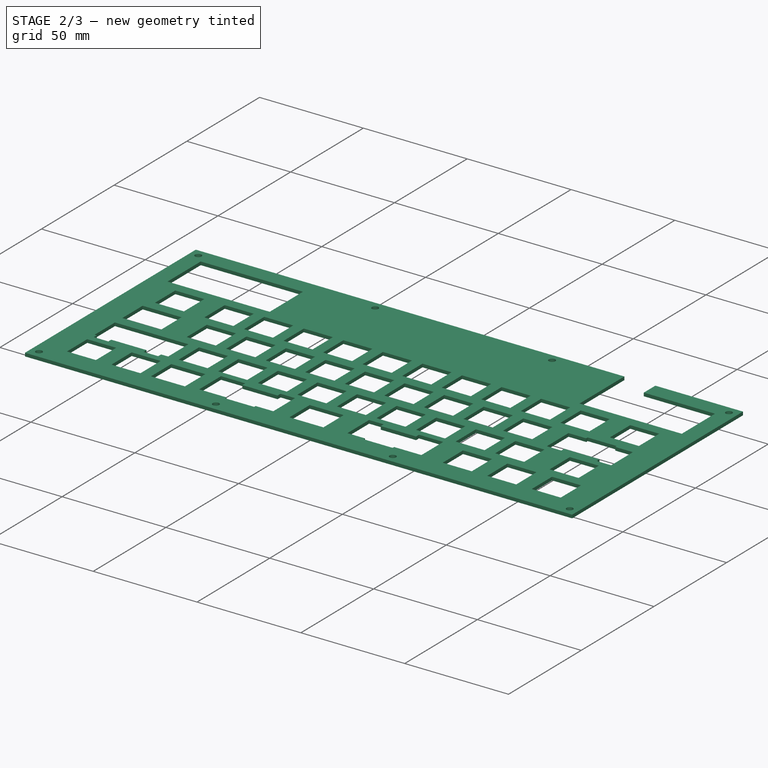
[diagram: stage 2 of 3 — iso view after this stage's code; geometry added in this stage tinted green]
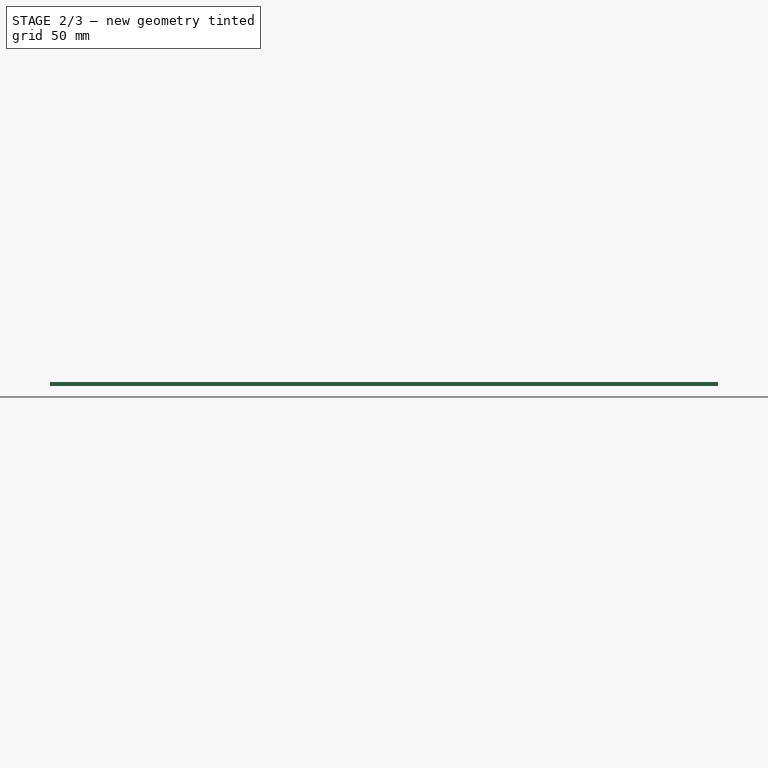
[diagram: stage 2 of 3 — front view after this stage's code; geometry added in this stage tinted green]
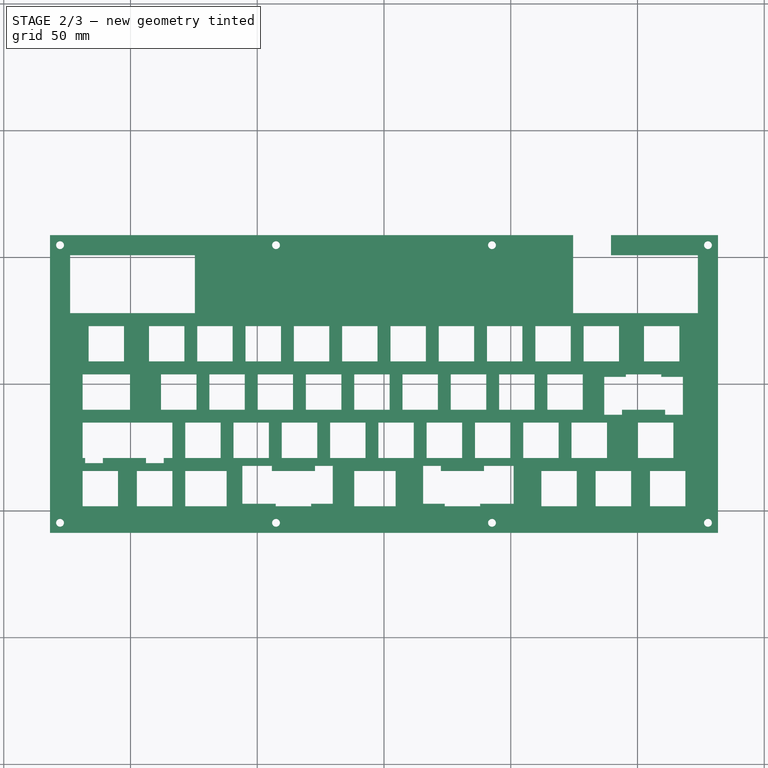
[diagram: stage 2 of 3 — top view after this stage's code; geometry added in this stage tinted green]
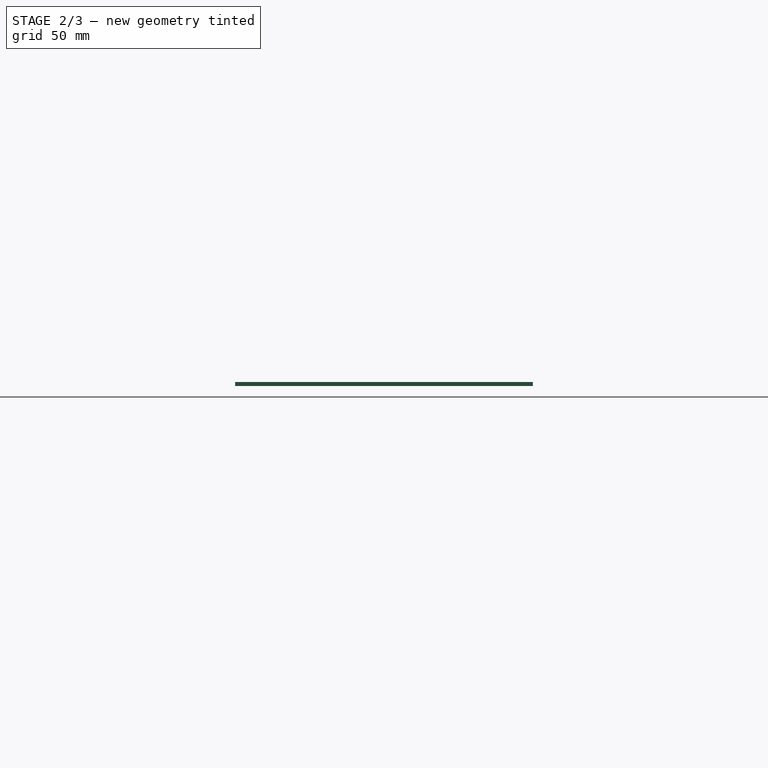
[diagram: stage 2 of 3 — right view after this stage's code; geometry added in this stage tinted green]
FEATURE [Sketcher::SketchObject] Sketch003
  ExternalGeometry = -> [Pocket]
  MapMode = 5
  Placement = pos=(0,0,1.5875) rot=(0,0,1;0rad)
  Support = -> [Pocket]
  expr: Constraints[53] = 0.75in * 2.25 / 2 + 0.375in
  sketch-geometry (40):
    g0: LineSegment StartX=86.8938 StartY=-12.16 StartZ=0 EndX=86.8938 EndY=2.81 EndZ=0
    g1: LineSegment StartX=86.8938 StartY=2.81 StartZ=0 EndX=117.894 EndY=2.81 EndZ=0
    g2: LineSegment StartX=117.894 StartY=2.81 StartZ=0 EndX=117.894 EndY=-12.16 EndZ=0
    g3: LineSegment StartX=117.894 StartY=-12.16 StartZ=0 EndX=110.894 EndY=-12.16 EndZ=0
    g4: LineSegment StartX=110.894 StartY=-12.16 StartZ=0 EndX=110.894 EndY=-10.16 EndZ=0
    g5: LineSegment StartX=110.894 StartY=-10.16 StartZ=0 EndX=93.8938 EndY=-10.16 EndZ=0
    g6: LineSegment StartX=93.8938 StartY=-10.16 StartZ=0 EndX=93.8938 EndY=-12.16 EndZ=0
    g7: LineSegment StartX=93.8938 StartY=-12.16 StartZ=0 EndX=86.8938 EndY=-12.16 EndZ=0
    g8: GeomPoint X=102.394 Y=2.81 Z=0
    g9: GeomPoint X=102.394 Y=3.81 Z=0
    g10: LineSegment [constr] StartX=102.394 StartY=3.81 StartZ=0 EndX=102.394 EndY=2.81 EndZ=0
    g11: LineSegment StartX=-117.894 StartY=-16.24 StartZ=0 EndX=-110.894 EndY=-16.24 EndZ=0
    g12: LineSegment StartX=-110.894 StartY=-16.24 StartZ=0 EndX=-110.894 EndY=-31.21 EndZ=0
    g13: LineSegment StartX=-110.894 StartY=-31.21 StartZ=0 EndX=-117.894 EndY=-31.21 EndZ=0
    g14: LineSegment StartX=-117.894 StartY=-31.21 StartZ=0 EndX=-117.894 EndY=-16.24 EndZ=0
    g15: LineSegment StartX=-93.8937 StartY=-16.24 StartZ=0 EndX=-86.8937 EndY=-16.24 EndZ=0
    g16: LineSegment StartX=-86.8937 StartY=-16.24 StartZ=0 EndX=-86.8937 EndY=-31.21 EndZ=0
    g17: LineSegment StartX=-86.8937 StartY=-31.21 StartZ=0 EndX=-93.8937 EndY=-31.21 EndZ=0
    g18: LineSegment StartX=-93.8937 StartY=-31.21 StartZ=0 EndX=-93.8937 EndY=-16.24 EndZ=0
    g19: GeomPoint X=-71.4375 Y=-15.24 Z=0
    g20: LineSegment [constr] StartX=-117.894 StartY=-16.24 StartZ=0 EndX=-86.8937 EndY=-16.24 EndZ=0
    g21: GeomPoint X=-102.394 Y=-16.24 Z=0
    g22: LineSegment StartX=-55.8813 StartY=-32.29 StartZ=0 EndX=-55.8813 EndY=-47.26 EndZ=0
    g23: LineSegment StartX=-55.8813 StartY=-47.26 StartZ=0 EndX=-20.2188 EndY=-47.26 EndZ=0
    g24: LineSegment StartX=-20.2188 StartY=-47.26 StartZ=0 EndX=-20.2188 EndY=-32.29 EndZ=0
    g25: LineSegment StartX=-20.2188 StartY=-32.29 StartZ=0 EndX=-27.2187 EndY=-32.29 EndZ=0
    g26: LineSegment StartX=-27.2187 StartY=-32.29 StartZ=0 EndX=-27.2187 EndY=-34.29 EndZ=0
    g27: LineSegment StartX=-27.2187 StartY=-34.29 StartZ=0 EndX=-44.2188 EndY=-34.29 EndZ=0
    g28: LineSegment StartX=-44.2188 StartY=-34.29 StartZ=0 EndX=-44.2188 EndY=-32.29 EndZ=0
    g29: LineSegment StartX=-44.2188 StartY=-32.29 StartZ=0 EndX=-55.8813 EndY=-32.29 EndZ=0
    g30: LineSegment StartX=15.4562 StartY=-32.29 StartZ=0 EndX=15.4562 EndY=-47.26 EndZ=0
    g31: LineSegment StartX=15.4562 StartY=-47.26 StartZ=0 EndX=51.1187 EndY=-47.26 EndZ=0
    g32: LineSegment StartX=51.1187 StartY=-47.26 StartZ=0 EndX=51.1187 EndY=-32.29 EndZ=0
    g33: LineSegment StartX=51.1187 StartY=-32.29 StartZ=0 EndX=39.4562 EndY=-32.29 EndZ=0
    g34: LineSegment StartX=39.4562 StartY=-32.29 StartZ=0 EndX=39.4562 EndY=-34.29 EndZ=0
    g35: LineSegment StartX=39.4562 StartY=-34.29 StartZ=0 EndX=22.4562 EndY=-34.29 EndZ=0
    g36: LineSegment StartX=22.4562 StartY=-34.29 StartZ=0 EndX=22.4562 EndY=-32.29 EndZ=0
    g37: LineSegment StartX=22.4562 StartY=-32.29 StartZ=0 EndX=15.4562 EndY=-32.29 EndZ=0
    g38: GeomPoint X=-35.7188 Y=-34.29 Z=0
    g39: GeomPoint X=30.9562 Y=-34.29 Z=0
  constraints (106):
    c: Coincident(g0,g1)
    c: Horizontal(g1)
    c: Coincident(g1,g2)
    c: Coincident(g2,g3)
    c: Coincident(g3,g4)
    c: Coincident(g4,g5)
    c: Coincident(g5,g6)
    c: Coincident(g6,g7)
    c: Coincident(g7,g0)
    c: Parallel(g5,g1)
    c: Parallel(g7,g5)
    c: Parallel(g3,g5)
    c: Perpendicular(g5,g6)
    c: Perpendicular(g5,g4)
    c: Perpendicular(g1,g2)
    c: Perpendicular(g1,g0)
    c: PointOnObject(g-6,g5)
    c: Equal(g7,g3)
    c: Symmetric(g0,g1,g8)
    c: PointOnObject(g6,g3)
    c: Symmetric(g-4,g-5,g9)
    c: Coincident(g10,g9)
    c: Coincident(g10,g8)
    c: Perpendicular(g1,g10)
    c: DistanceY(g8,g9) = 1
    c: DistanceX(g0,g1) = 31
    c: DistanceX(g3,g2) = 7
    c: DistanceY(g6,g5) = 2
    c: Coincident(g11,g12)
    c: Coincident(g12,g13)
    c: Coincident(g13,g14)
    c: Coincident(g14,g11)
    c: Horizontal(g11)
    c: Horizontal(g13)
    c: Vertical(g12)
    c: Vertical(g14)
    c: Coincident(g15,g16)
    c: Coincident(g16,g17)
    c: Coincident(g17,g18)
    c: Coincident(g18,g15)
    c: Horizontal(g15)
    c: Horizontal(g17)
    c: Vertical(g16)
    c: Vertical(g18)
    c: PointOnObject(g12,g17)
    c: PointOnObject(g15,g11)
    c: Equal(g13,g7)
    c: Equal(g13,g17)
    c: Equal(g0,g14)
    c: Symmetric(g-15,g-15,g19)
    c: Coincident(g20,g11)
    c: Coincident(g20,g15)
    c: Symmetric(g15,g11,g21)
    c: DistanceX(g21,g19) = 30.9562
    c: DistanceX(g13,g16) = 31
    c: DistanceY(g21,g19) = 1
    c: Vertical(g22)
    c: Coincident(g22,g23)
    c: Horizontal(g23)
    c: Coincident(g23,g24)
    c: Vertical(g24)
    c: Coincident(g24,g25)
    c: Horizontal(g25)
    c: Coincident(g25,g26)
    c: Vertical(g26)
    c: Coincident(g26,g27)
    c: Horizontal(g27)
    c: Coincident(g27,g28)
    c: Vertical(g28)
    c: Coincident(g28,g29)
    c: Coincident(g29,g22)
    c: Perpendicular(g28,g29)
    c: Vertical(g30)
    c: Coincident(g30,g31)
    c: Horizontal(g31)
    c: Coincident(g31,g32)
    c: Vertical(g32)
    c: Coincident(g32,g33)
    c: Horizontal(g33)
    c: Coincident(g33,g34)
    c: Vertical(g34)
    c: Coincident(g34,g35)
    c: Horizontal(g35)
    c: Coincident(g35,g36)
    c: Vertical(g36)
    c: Coincident(g36,g37)
    c: Coincident(g37,g30)
    c: Perpendicular(g36,g37)
    c: Equal(g25,g37)
    c: Equal(g29,g33)
    c: PointOnObject(g28,g25)
    c: PointOnObject(g24,g37)
    c: PointOnObject(g36,g33)
    c: PointOnObject(g23,g31)
    c: PointOnObject(g26,g35)
    c: PointOnObject(g35,g-7)
    c: Equal(g37,g7)
    c: DistanceX(g22,g31) = 107
    c: Equal(g22,g0)
    c: DistanceY(g-14,g23) = 1
    c: Symmetric(g-13,g-12,g38)
    c: DistanceX(g38,g24) = 15.5
    c: Symmetric(g-8,g-10,g39)
    c: DistanceX(g30,g39) = 15.5
    c: Equal(g27,g5)
    c: Equal(g27,g35)
FEATURE [PartDesign::Pocket] Pocket001  label="Stabilizers"
  BaseFeature = -> Pocket
  Length = 5.00126
  Length2 = 99.9998
  Profile = -> Sketch003
  Type = 1
FEATURE [Sketcher::SketchObject] Sketch004
  ExternalGeometry = -> [Pocket001]
  MapMode = 5
  Placement = pos=(0,0,1.5875) rot=(0,0,1;0rad)
  Support = -> [Pocket001]
  expr: Constraints[27] = Spreadsheet.acrylicWidth
  expr: Constraints[29] = Spreadsheet.acrylicWidth
  sketch-geometry (14):
    g0: LineSegment StartX=-123.825 StartY=50.8 StartZ=0 EndX=-74.6125 EndY=50.8 EndZ=0
    g1: LineSegment StartX=-74.6125 StartY=50.8 StartZ=0 EndX=-74.6125 EndY=27.94 EndZ=0
    g2: LineSegment StartX=-74.6125 StartY=27.94 StartZ=0 EndX=-123.825 EndY=27.94 EndZ=0
    g3: LineSegment StartX=-123.825 StartY=27.94 StartZ=0 EndX=-123.825 EndY=50.8 EndZ=0
    g4: LineSegment [constr] StartX=74.6125 StartY=50.8 StartZ=0 EndX=123.825 EndY=50.8 EndZ=0
    g5: LineSegment StartX=123.825 StartY=50.8 StartZ=0 EndX=123.825 EndY=27.94 EndZ=0
    g6: LineSegment StartX=123.825 StartY=27.94 StartZ=0 EndX=74.6125 EndY=27.94 EndZ=0
    g7: LineSegment StartX=74.6125 StartY=27.94 StartZ=0 EndX=74.6125 EndY=50.8 EndZ=0
    g8: LineSegment [constr] StartX=123.825 StartY=50.8 StartZ=0 EndX=131.762 EndY=50.8 EndZ=0
    g9: LineSegment [constr] StartX=-123.825 StartY=50.8 StartZ=0 EndX=-131.762 EndY=50.8 EndZ=0
    g10: LineSegment StartX=74.6125 StartY=50.8 StartZ=0 EndX=74.6125 EndY=58.7375 EndZ=0
    g11: LineSegment StartX=74.6125 StartY=58.7375 StartZ=0 EndX=89.535 EndY=58.7375 EndZ=0
    g12: LineSegment StartX=89.535 StartY=58.7375 StartZ=0 EndX=89.535 EndY=50.8 EndZ=0
    g13: LineSegment StartX=89.535 StartY=50.8 StartZ=0 EndX=123.825 EndY=50.8 EndZ=0
  constraints (41):
    c: Coincident(g0,g1)
    c: Coincident(g1,g2)
    c: Coincident(g2,g3)
    c: Coincident(g3,g0)
    c: Horizontal(g0)
    c: Horizontal(g2)
    c: Vertical(g1)
    c: Vertical(g3)
    c: Coincident(g4,g5)
    c: Coincident(g5,g6)
    c: Coincident(g6,g7)
    c: Coincident(g7,g4)
    c: Horizontal(g4)
    c: Horizontal(g6)
    c: Vertical(g5)
    c: Vertical(g7)
    c: DistanceX(g0,g0) = 49.2125
    c: Equal(g0,g4)
    c: Equal(g1,g7)
    c: DistanceY(g1,g0) = 22.86
    c: PointOnObject(g4,g0)
    c: Coincident(g8,g4)
    c: PointOnObject(g8,g-5)
    c: Coincident(g9,g0)
    c: PointOnObject(g9,g-3)
    c: Perpendicular(g9,g-3)
    c: Perpendicular(g-5,g8)
    c: DistanceX(g9,g0) = 7.9375
    c: Equal(g9,g8)
    c: DistanceY(g0,g-4) = 7.9375
    c: Coincident(g7,g10)
    c: Vertical(g10)
    c: Coincident(g10,g11)
    c: Horizontal(g11)
    c: Coincident(g11,g12)
    c: Coincident(g12,g13)
    c: Coincident(g13,g5)
    c: Perpendicular(g5,g13)
    c: Perpendicular(g11,g12)
    c: PointOnObject(g11,g-4)
    c: DistanceX(g10,g11) = 14.9225
FEATURE [PartDesign::Pocket] Pocket002  label="Side Pockets"
  BaseFeature = -> Pocket001
  Length = 5.00126
  Length2 = 99.9998
  Profile = -> Sketch004
  Type = 1
FEATURE [PartDesign::Hole] Hole  label="Mounting Holes"
  BaseFeature = -> Pocket002
  Depth = 25
  DepthType = 1
  Diameter = 3.0988
  DrillPoint = 1
  DrillPointAngle = 118
  HoleCutCountersinkAngle = 90
  HoleCutDepth = 0
  HoleCutDiameter = 0
  HoleCutType = 0
  ModelActualThread = false
  Profile = -> Sketch001
  Tapered = false
  TaperedAngle = 90
  ThreadAngle = 0
  ThreadClass = 0
  ThreadCutOffInner = 0
  ThreadCutOffOuter = 0
  ThreadDirection = 0
  ThreadFit = 0
  ThreadPitch = 0
  ThreadSize = 0
  ThreadType = 0
  Threaded = false
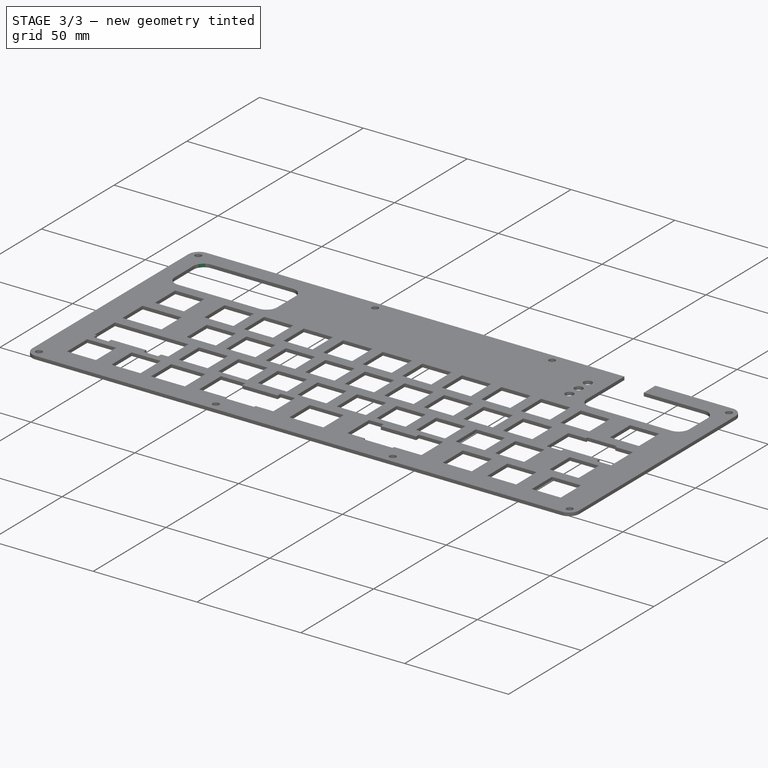
[diagram: stage 3 of 3 — iso view after this stage's code; geometry added in this stage tinted green]
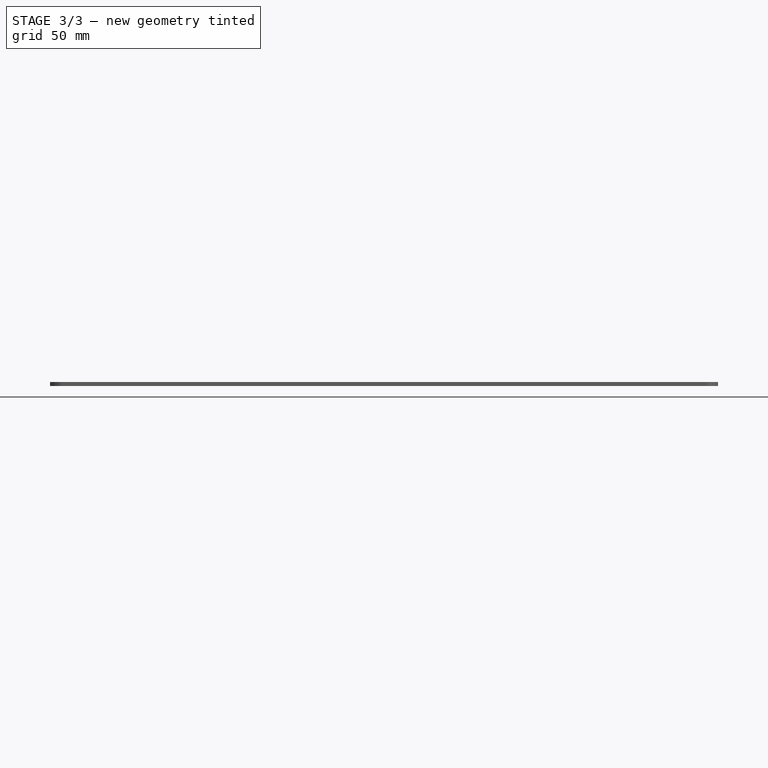
[diagram: stage 3 of 3 — front view after this stage's code; geometry added in this stage tinted green]
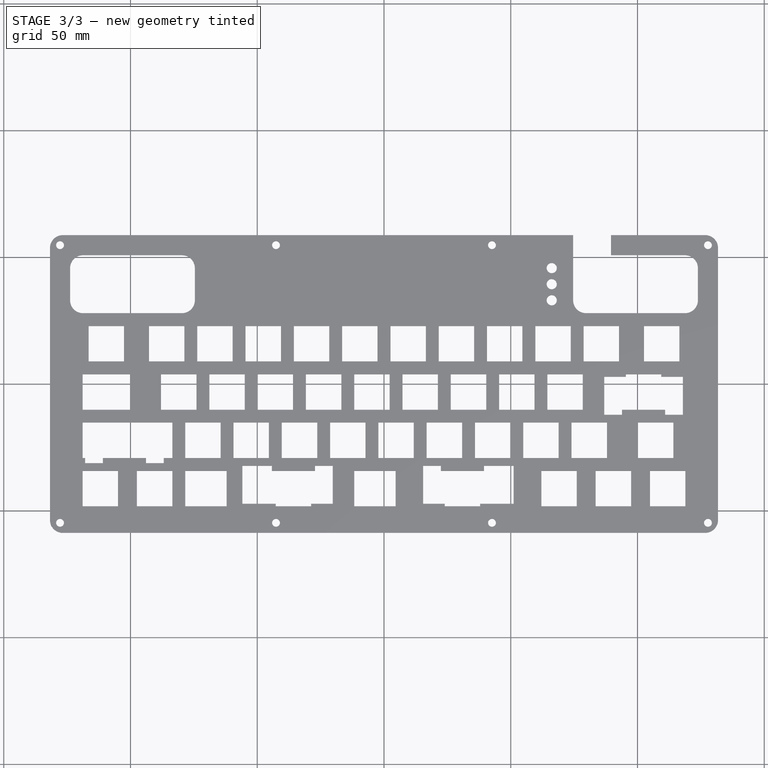
[diagram: stage 3 of 3 — top view after this stage's code; geometry added in this stage tinted green]
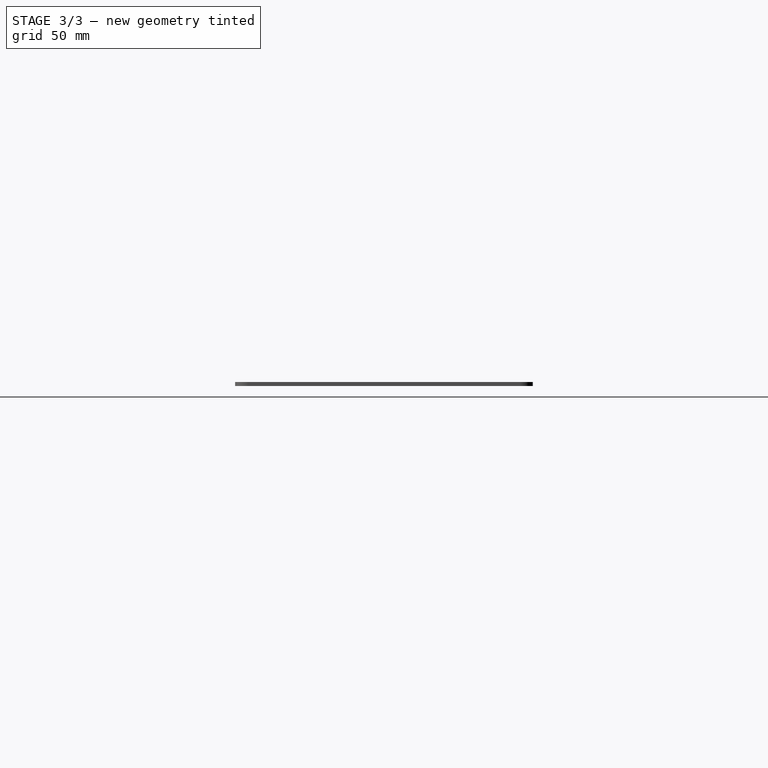
[diagram: stage 3 of 3 — right view after this stage's code; geometry added in this stage tinted green]
FEATURE [Sketcher::SketchObject] Sketch005
  ExternalGeometry = -> [Pocket002]
  MapMode = 5
  Placement = pos=(0,0,1.5875) rot=(0,0,1;0rad)
  Support = -> [Pocket002]
  expr: Constraints[12] = 0.675in - 0.55in / 2
  expr: Constraints[11] = 0.02in + 0.55in / 2
  sketch-geometry (5):
    g0: Circle CenterX=66.167 CenterY=33.02 CenterZ=0 NormalX=0 NormalY=0 NormalZ=1 AngleXU=0 Radius=2
    g1: Circle CenterX=66.167 CenterY=39.37 CenterZ=0 NormalX=0 NormalY=0 NormalZ=1 AngleXU=0 Radius=2
    g2: LineSegment [constr] StartX=66.167 StartY=33.02 StartZ=0 EndX=66.167 EndY=39.37 EndZ=0
    g3: Circle CenterX=66.167 CenterY=45.72 CenterZ=0 NormalX=0 NormalY=0 NormalZ=1 AngleXU=0 Radius=2
    g4: LineSegment [constr] StartX=66.167 StartY=39.37 StartZ=0 EndX=66.167 EndY=45.72 EndZ=0
  constraints (13):
    c: Coincident(g0,g2)
    c: Coincident(g1,g2)
    c: Distance(g2) = 6.35
    c: Angle(g2) = 1.5708
    c: Coincident(g1,g4)
    c: Coincident(g3,g4)
    c: Equal(g2,g4)
    c: Parallel(g4,g2)
    c: Radius(g0) = 2
    c: Equal(g0,g1)
    c: Equal(g1,g3)
    c: DistanceX(g0,g-3) = 7.493
    c: DistanceY(g-3,g0) = 10.16
FEATURE [PartDesign::Pocket] Pocket003  label="LED Holes"
  BaseFeature = -> Hole
  Length = 5.00126
  Length2 = 99.9998
  Profile = -> Sketch005
  Type = 1
FEATURE [PartDesign::Fillet] Fillet
  Base = -> Pocket003 [Edge676,Edge5,Edge674,Edge675,Edge677,Edge1,Edge2,Edge8,Edge480,Edge481,Edge483]
  BaseFeature = -> Pocket003
  Radius = 5.08
  SupportTransform = false
FEATURE [PartDesign::Body] Body
  Group = -> [Sketch,Pad,Pocket,Pocket001,Pocket002,Hole,Sketch002,Sketch003,Sketch004,Sketch005,Pocket003,Fillet]
  Origin = -> Origin
  Tip = -> Fillet
FEATURE [PartDesign::CoordinateSystem] LCS_0
  AttacherType = Attacher::AttachEngine3D
  MapMode = 2
  Support = -> [X_Axis001]
FEATURE [App::Part] Part
  Group = -> [LCS_0,Body]
  Origin = -> Origin001
FEATURE [TechDraw::DrawSVGTemplate] Template
  Height = 210
  Orientation = 1
  Width = 297
FEATURE [TechDraw::DrawViewPart] View
  CoarseView = false
  Direction = (0,0,1)
  Focus = 100
  HardHidden = false
  IsoCount = 0
  IsoHidden = false
  IsoVisible = false
  LockPosition = false
  Perspective = false
  Rotation = 0
  ScaleType = 0
  SeamHidden = false
  SeamVisible = true
  SmoothHidden = false
  SmoothVisible = true
  Source = -> [Body]
  X = 148.5
  XDirection = (1,0,0)
  Y = 105
FEATURE [TechDraw::DrawPage] Page
  KeepUpdated = true
  NextBalloonIndex = 1
  ProjectionType = 0
  Template = -> Template
  Views = -> [View]
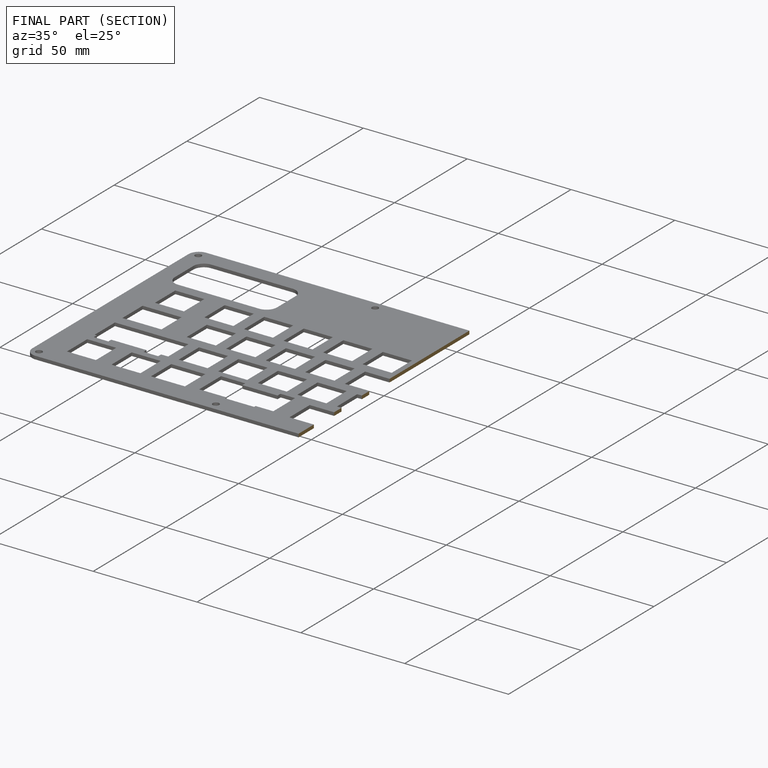
[diagram: finished part — half-section view (interior)]
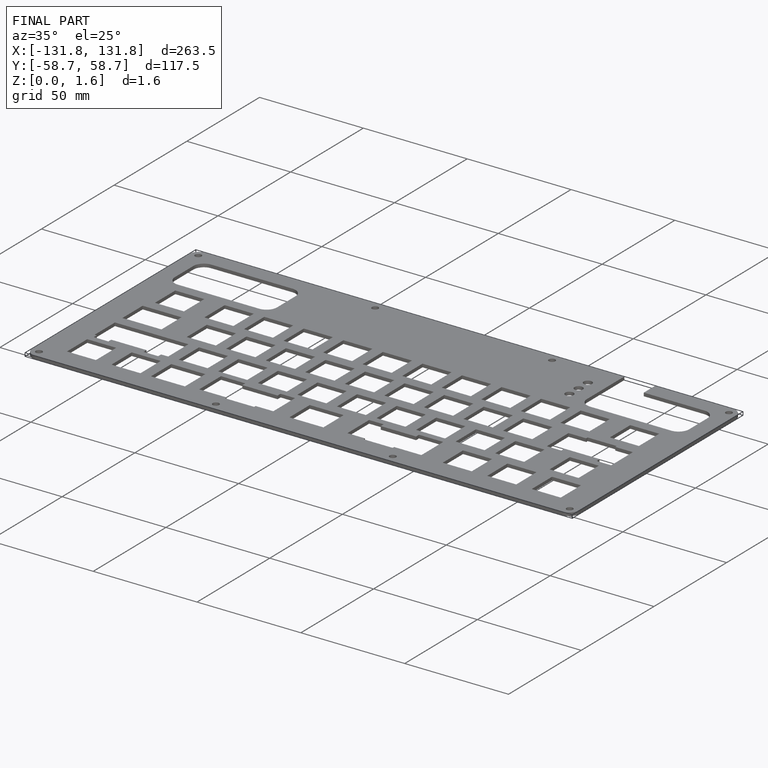
[diagram: finished part — iso view with bounding-box wireframe]
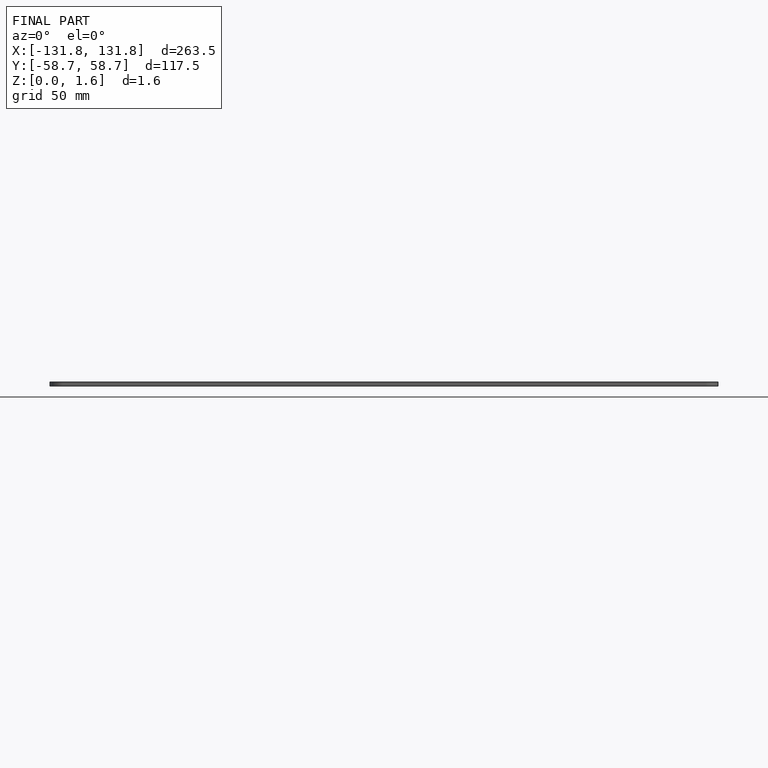
[diagram: finished part — front view with bounding-box wireframe]
